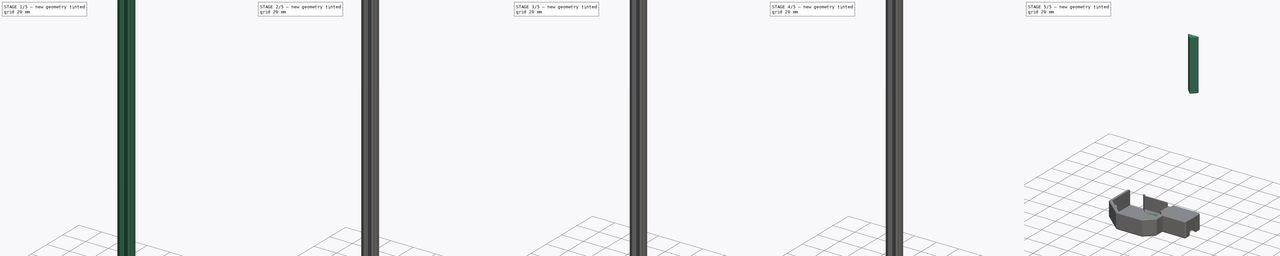
[diagram: build sequence overview — one tinted view per stage of 5, left to right]
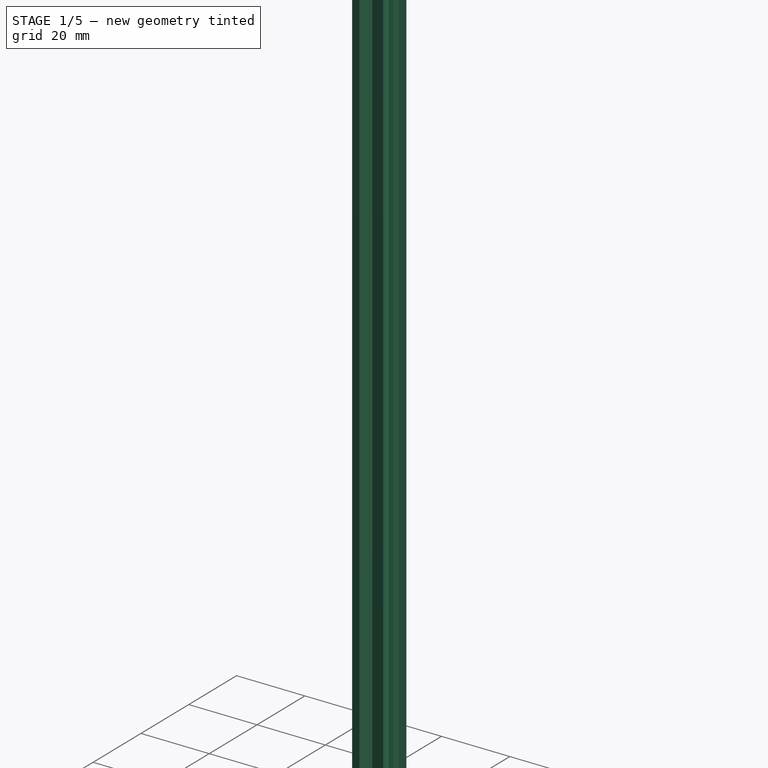
[diagram: stage 1 of 5 — iso view after this stage's code; geometry added in this stage tinted green]
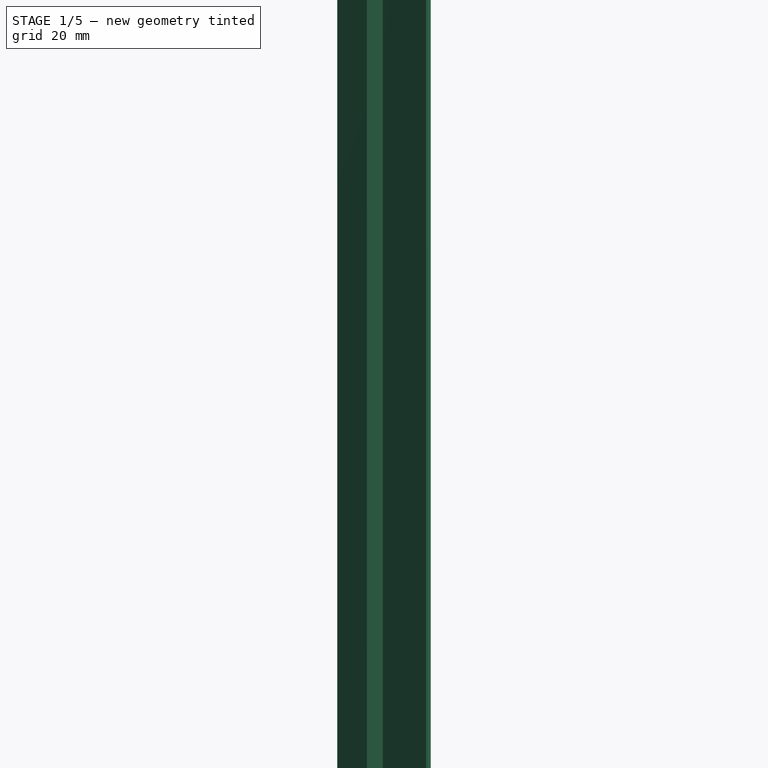
[diagram: stage 1 of 5 — front view after this stage's code; geometry added in this stage tinted green]
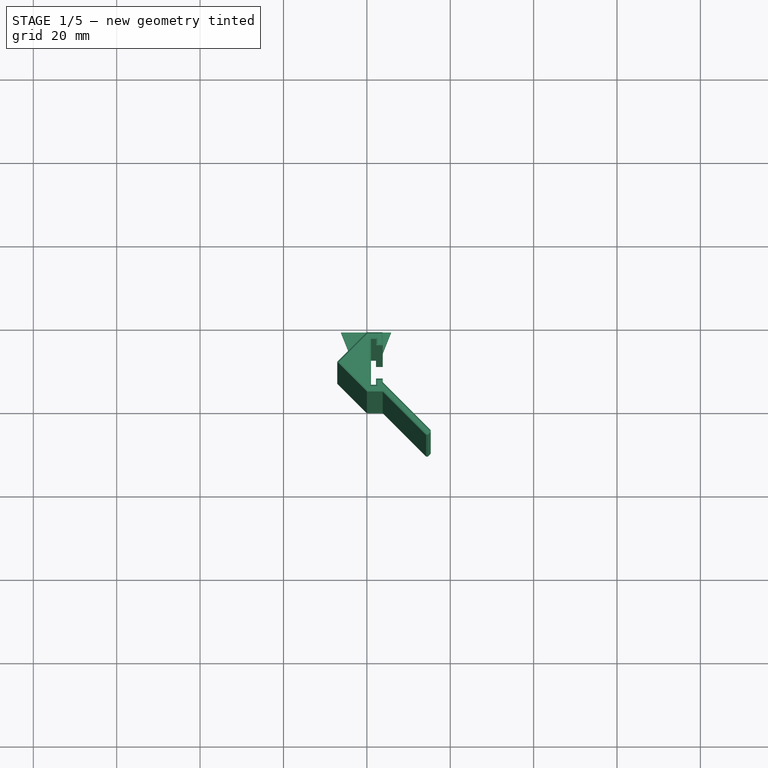
[diagram: stage 1 of 5 — top view after this stage's code; geometry added in this stage tinted green]
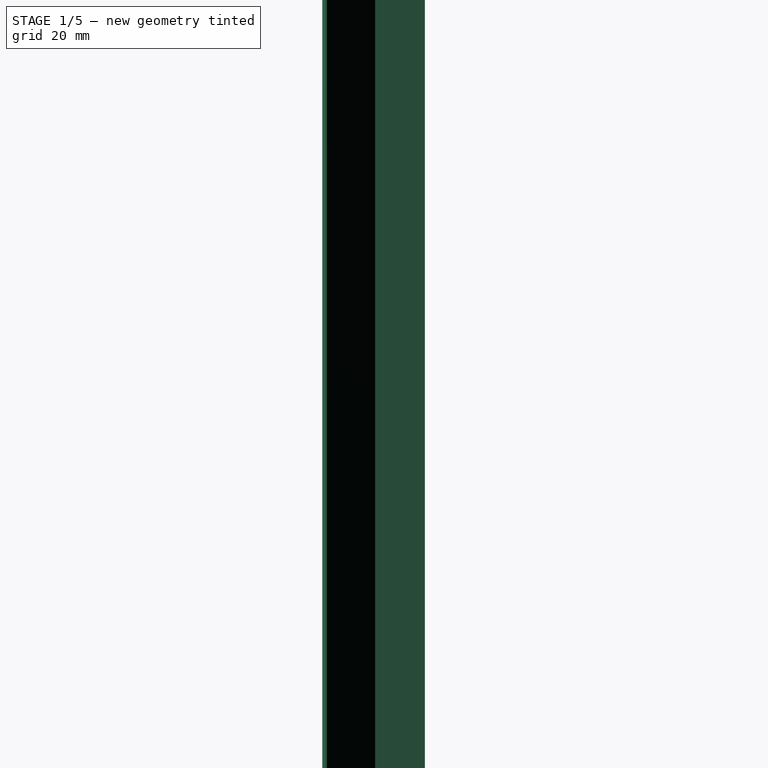
[diagram: stage 1 of 5 — right view after this stage's code; geometry added in this stage tinted green]
FCSTD DOCUMENT  (FreeCAD 2024.101R14555 (Git shallow))
Label: led strip mount
License: All rights reserved
LicenseURL: http://en.wikipedia.org/wiki/All_rights_reserved
objects: Sketcher::SketchObject×16, PartDesign::Pad×12, PartDesign::Chamfer×10, PartDesign::Pocket×6, PartDesign::Body×4, PartDesign::SubShapeBinder×3, PartDesign::Solid×2, PartDesign::Plane×1, Part::Feature×1, Part::Refine×1, PartDesign::Split×1
note: 130 computed .brp shape members not serialized (recipe doc carries the construction recipe); baked Part::Feature solids carry a one-line shape summary decoded from their .brp

FEATURE [Sketcher::SketchObject] Sketch008
  ArcFitTolerance = 1e-06
  AttachmentSupport = -> [XY_Plane002]
  ExternalBSplineMaxDegree = 5
  ExternalBSplineTolerance = 0.0001
  FullyConstrained = true
  InternalTolerance = 1e-06
  InvalidShape = false
  MakeInternals = false
  MapMode = 5
  Support = -> [XY_Plane002]
  TreeRank = 131
  ValidateShape = true
  sketch-geometry (14):
    g0: LineSegment StartX=3.8 StartY=3.1 StartZ=0 EndX=3.8 EndY=0 EndZ=0
    g1: LineSegment StartX=3.8 StartY=0 StartZ=0 EndX=0 EndY=0 EndZ=0
    g2: LineSegment StartX=0 StartY=14.2 StartZ=0 EndX=3.8 EndY=14.2 EndZ=0
    g3: LineSegment StartX=3.8 StartY=14.2 StartZ=0 EndX=3.8 EndY=11.1 EndZ=0
    g4: LineSegment StartX=1 StartY=12.6 StartZ=0 EndX=1 EndY=1.6 EndZ=0
    g5: LineSegment StartX=1 StartY=1.6 StartZ=0 EndX=2.2 EndY=1.6 EndZ=0
    g6: LineSegment StartX=2.2 StartY=1.6 StartZ=0 EndX=2.2 EndY=3.1 EndZ=0
    g7: LineSegment StartX=2.2 StartY=3.1 StartZ=0 EndX=3.8 EndY=3.1 EndZ=0
    g8: LineSegment StartX=1 StartY=12.6 StartZ=0 EndX=2.2 EndY=12.6 EndZ=0
    g9: LineSegment StartX=2.2 StartY=12.6 StartZ=0 EndX=2.2 EndY=11.1 EndZ=0
    g10: LineSegment StartX=2.2 StartY=11.1 StartZ=0 EndX=3.8 EndY=11.1 EndZ=0
    g11: LineSegment StartX=-7.1 StartY=7.1 StartZ=0 EndX=0 EndY=0 EndZ=0
    g12: LineSegment [constr] StartX=2.2 StartY=1.6 StartZ=0 EndX=2.2 EndY=0 EndZ=0
    g13: LineSegment StartX=-7.1 StartY=7.1 StartZ=0 EndX=-9e-16 EndY=14.2 EndZ=0
  constraints (41):
    c: Vertical(g0)
    c: Coincident(g0,g1)
    c: Coincident(g1,g-1)
    c: Horizontal(g1)
    c: PointOnObject(g2,g-2)
    c: Horizontal(g2)
    c: Coincident(g2,g3)
    c: Vertical(g3)
    c: Vertical(g4)
    c: Coincident(g4,g5)
    c: Horizontal(g5)
    c: Coincident(g5,g6)
    c: Vertical(g6)
    c: Coincident(g6,g7)
    c: Coincident(g4,g8)
    c: Horizontal(g8)
    c: Coincident(g8,g9)
    c: Coincident(g9,g10)
    c: Horizontal(g10)
    c: Coincident(g10,g3)
    c: Coincident(g7,g0)
    c: DistanceY(g4,g4) = 11
    c: DistanceX(g8,g8) = 1.2
    c: Vertical(g9)
    c: Vertical(g9,g6)
    c: Horizontal(g7)
    c: DistanceY(g9,g9) = 1.5
    c: DistanceX(g10,g10) = 1.6
    c: Equal(g3,g0)
    c: Equal(g9,g6)
    c: Equal(g7,g10)
    c: DistanceX(g1,g4) = 1
    c: Coincident(g11,g1)
    c: Coincident(g12,g5)
    c: PointOnObject(g12,g1)
    c: Vertical(g12)
    c: Equal(g12,g7)
    c: Coincident(g13,g2)
    c: Perpendicular(g11,g13)
    c: Equal(g13,g11)
    c: Coincident(g11,g13)
FEATURE [PartDesign::Pad] Pad006
  AddSubType = 0
  AlongSketchNormal = false
  AutoTaperInnerAngle = true
  CheckUpToFaceLimits = true
  ClaimChildren = false
  Direction = (0,0,1)
  Fit = 0
  FitJoin = 0
  InnerFit = 0
  InnerFitJoin = 0
  InvalidShape = false
  Length = 300
  Length2 = 100
  Linearize = true
  NewSolid = false
  Profile = -> Sketch008
  Refine = true
  Suppress = false
  TaperInnerAngle = 0
  TaperInnerAngleRev = 0
  TreeRank = 144
  Type = 0
  ValidateShape = true
  _ProfileBasedVersion = 1
FEATURE [Sketcher::SketchObject] Sketch009
  ArcFitTolerance = 1e-06
  AttachmentSupport = -> [Pad005]
  ExternalBSplineMaxDegree = 5
  ExternalBSplineTolerance = 0.0001
  ExternalGeometry = -> [Pad005]
  FullyConstrained = true
  InternalTolerance = 1e-06
  InvalidShape = false
  MakeInternals = false
  MapMode = 5
  Placement = pos=(0,0,0) rot=(1,0,0;3.14159rad)
  Support = -> [Pad005]
  TreeRank = 146
  ValidateShape = true
  sketch-geometry (4):
    g0: LineSegment StartX=40 StartY=4.2 StartZ=0 EndX=34.8 EndY=6.2 EndZ=0
    g1: LineSegment StartX=34.8 StartY=6.2 StartZ=0 EndX=34.8 EndY=-6.2 EndZ=0
    g2: LineSegment StartX=34.8 StartY=-6.2 StartZ=0 EndX=40 EndY=-4.2 EndZ=0
    g3: LineSegment StartX=40 StartY=-4.2 StartZ=0 EndX=40 EndY=4.2 EndZ=0
  constraints (10):
    c: Coincident(g0,g1)
    c: Coincident(g1,g2)
    c: Coincident(g3,g2)
    c: Coincident(g3,g0)
    c: Symmetric(g0,g2,g-1)
    c: DistanceY(g3,g3) = 8.4
    c: DistanceX(g0,g0) = 5.2
    c: DistanceY(g1,g1) = 12.4
    c: Symmetric(g1,g0,g-1)
    c: PointOnObject(g0,g-3)
FEATURE [Sketcher::SketchObject] Sketch010
  ArcFitTolerance = 1e-06
  AttachmentSupport = -> [XY_Plane002]
  ExternalBSplineMaxDegree = 5
  ExternalBSplineTolerance = 0.0001
  ExternalGeometry = -> [Pad006]
  FullyConstrained = true
  InternalTolerance = 1e-06
  InvalidShape = false
  MakeInternals = false
  MapMode = 5
  Placement = pos=(0,0,0) rot=(0,1,0;3.14159rad)
  Support = -> [XY_Plane002]
  TreeRank = 148
  ValidateShape = true
  sketch-geometry (5):
    g0: LineSegment StartX=-3.8 StartY=14.2 StartZ=0 EndX=-5.8 EndY=19.2 EndZ=0
    g1: LineSegment StartX=-5.8 StartY=19.2 StartZ=0 EndX=6.2 EndY=19.2 EndZ=0
    g2: LineSegment StartX=6.2 StartY=19.2 StartZ=0 EndX=4.2 EndY=14.2 EndZ=0
    g3: LineSegment StartX=4.2 StartY=14.2 StartZ=0 EndX=-3.8 EndY=14.2 EndZ=0
    g4: LineSegment [constr] StartX=0.2 StartY=14.2 StartZ=0 EndX=0.2 EndY=19.2 EndZ=0
  constraints (13):
    c: Coincident(g0,g1)
    c: Horizontal(g1)
    c: Coincident(g1,g2)
    c: Horizontal(g3)
    c: DistanceX(g3,g3) = 8
    c: DistanceX(g1,g1) = 12
    c: DistanceY(g0,g0) = 5
    c: Vertical(g4)
    c: Symmetric(g0,g2,g4)
    c: Symmetric(g0,g1,g4)
    c: Coincident(g0,g3)
    c: Coincident(g2,g3)
    c: Coincident(g0,g-3)
FEATURE [PartDesign::Pad] Pad007
  AddSubType = 0
  AlongSketchNormal = false
  AutoTaperInnerAngle = true
  BaseFeature = -> Pad006
  CheckUpToFaceLimits = true
  ClaimChildren = false
  Direction = (0,0,-1)
  Fit = 0
  FitJoin = 0
  InnerFit = 0
  InnerFitJoin = 0
  InvalidShape = false
  Length = 10
  Length2 = 100
  Linearize = true
  NewSolid = false
  Profile = -> Sketch010
  Refine = true
  Reversed = true
  Suppress = false
  TaperInnerAngle = 0
  TaperInnerAngleRev = 0
  TreeRank = 149
  Type = 0
  ValidateShape = true
  _ProfileBasedVersion = 1
FEATURE [Sketcher::SketchObject] Sketch013
  ArcFitTolerance = 1e-06
  AttachmentSupport = -> [XY_Plane002]
  ExternalBSplineMaxDegree = 5
  ExternalBSplineTolerance = 0.0001
  ExternalGeometry = -> [Pad007]
  FullyConstrained = true
  InternalTolerance = 1e-06
  InvalidShape = false
  MakeInternals = false
  MapMode = 5
  Placement = pos=(0,0,0) rot=(0,1,0;3.14159rad)
  Support = -> [XY_Plane002]
  TreeRank = 157
  ValidateShape = true
  sketch-geometry (1):
    g0: LineSegment StartX=4.2 StartY=14.2 StartZ=0 EndX=7.1 EndY=7.1 EndZ=0
  constraints (2):
    c: Coincident(g0,g-3)
    c: Coincident(g0,g-4)
FEATURE [PartDesign::Pad] Pad010
  AddSubType = 0
  AlongSketchNormal = false
  AutoTaperInnerAngle = true
  BaseFeature = -> Pad007
  CheckUpToFaceLimits = true
  ClaimChildren = false
  Direction = (0,0,-1)
  Fit = 0
  FitJoin = 0
  InnerFit = 0
  InnerFitJoin = 0
  InvalidShape = false
  Length = 10
  Length2 = 100
  Linearize = true
  NewSolid = false
  Profile = -> Sketch013
  Refine = true
  Suppress = false
  TaperInnerAngle = 0
  TaperInnerAngleRev = 0
  TreeRank = 158
  Type = 3
  UpToFace = -> Pad007 [Face19]
  ValidateShape = true
  _ProfileBasedVersion = 1
FEATURE [PartDesign::Plane] DatumPlane
  AttachmentOffset = pos=(0,0,150) rot=(0,0,1;0rad)
  AttachmentSupport = -> [XY_Plane002]
  InvalidShape = false
  Length = 10.7
  MapMode = 5
  MinimumLength = 10
  MinimumWidth = 10
  Placement = pos=(0,0,150) rot=(0,0,1;0rad)
  ResizeMode = 0
  Support = -> [XY_Plane002]
  TreeRank = 199
  ValidateShape = true
  Width = 18
FEATURE [Sketcher::SketchObject] Sketch014
  ArcFitTolerance = 1e-06
  AttachmentSupport = -> [DatumPlane]
  ExternalBSplineMaxDegree = 5
  ExternalBSplineTolerance = 0.0001
  ExternalGeometry = -> [Pad010]
  FullyConstrained = true
  InternalTolerance = 1e-06
  InvalidShape = false
  MakeInternals = false
  MapMode = 5
  Placement = pos=(0,0,150) rot=(0,0,1;0rad)
  Support = -> [DatumPlane]
  TreeRank = 163
  ValidateShape = true
  sketch-geometry (5):
    g0: LineSegment StartX=0 StartY=12.7858 StartZ=0 EndX=-5.68579 EndY=7.1 EndZ=0
    g1: LineSegment StartX=-5.68579 StartY=7.1 StartZ=0 EndX=0 EndY=1.41421 EndZ=0
    g2: LineSegment StartX=0 StartY=1.41421 StartZ=0 EndX=0 EndY=12.7858 EndZ=0
    g3: LineSegment [constr] StartX=0 StartY=12.7858 StartZ=0 EndX=1 EndY=12.7858 EndZ=0
    g4: LineSegment [constr] StartX=0 StartY=12.7858 StartZ=0 EndX=-0.707107 EndY=13.4929 EndZ=0
  constraints (15):
    c: Coincident(g0,g1)
    c: Coincident(g1,g2)
    c: Coincident(g2,g0)
    c: Vertical(g2)
    c: Equal(g0,g1)
    c: Perpendicular(g1,g0)
    c: Horizontal(g-5,g0)
    c: PointOnObject(g0,g-2)
    c: Coincident(g3,g0)
    c: PointOnObject(g3,g-4)
    c: Horizontal(g3)
    c: Coincident(g4,g0)
    c: PointOnObject(g4,g-3)
    c: Perpendicular(g-3,g4)
    c: Equal(g4,g3)
FEATURE [PartDesign::Pocket] Pocket001
  AddSubType = 1
  AutoTaperInnerAngle = true
  BaseFeature = -> Pad010
  CheckUpToFaceLimits = true
  ClaimChildren = false
  Direction = (0,0,-1)
  Fit = 0
  FitJoin = 0
  InnerFit = 0
  InnerFitJoin = 0
  InvalidShape = false
  Length = 55
  Length2 = 100
  Linearize = true
  Midplane = true
  NewSolid = false
  Profile = -> Sketch014
  Refine = true
  Suppress = false
  TaperInnerAngle = 0
  TaperInnerAngleRev = 0
  TreeRank = 164
  Type = 0
  ValidateShape = true
  _ProfileBasedVersion = 1
  _Version = 1
FEATURE [Sketcher::SketchObject] Sketch021
  ArcFitTolerance = 1e-06
  AttachmentSupport = -> [XY_Plane002]
  ExternalBSplineMaxDegree = 5
  ExternalBSplineTolerance = 0.0001
  ExternalGeometry = -> [Sketch008]
  FixShape = 1
  FullyConstrained = true
  InternalTolerance = 1e-06
  InvalidShape = false
  MakeInternals = false
  MapMode = 5
  Support = -> [XY_Plane002]
  TreeRank = 235
  ValidateShape = false
  sketch-geometry (4):
    g0: LineSegment StartX=3.8 StartY=0 StartZ=0 EndX=14.4066 EndY=-10.6066 EndZ=0
    g1: LineSegment StartX=3.8 StartY=2.26274 StartZ=0 EndX=15.538 EndY=-9.47523 EndZ=0
    g2: LineSegment StartX=3.8 StartY=2.26274 StartZ=0 EndX=3.8 EndY=0 EndZ=0
    g3: LineSegment StartX=14.4066 StartY=-10.6066 StartZ=0 EndX=15.538 EndY=-9.47523 EndZ=0
  constraints (11):
    c: Coincident(g0,g-4)
    c: PointOnObject(g1,g-4)
    c: Coincident(g2,g1)
    c: Coincident(g2,g0)
    c: Coincident(g3,g0)
    c: Coincident(g3,g1)
    c: Parallel(g0,g1)
    c: Perpendicular(g1,g3)
    c: Angle(g0) = -0.785398
    c: Distance(g0) = 15
    c: Equal(g3,g-5)
FEATURE [PartDesign::Pad] Pad016
  AddSubType = 0
  AlongSketchNormal = false
  AutoTaperInnerAngle = true
  BaseFeature = -> Pocket001
  CheckUpToFaceLimits = true
  ClaimChildren = false
  Direction = (0,0,1)
  Fit = 0
  FitJoin = 0
  FixShape = 1
  InnerFit = 0
  InnerFitJoin = 0
  InvalidShape = false
  Length = 10
  Length2 = 10
  Linearize = true
  NewSolid = false
  Profile = -> Sketch021
  ReferenceAxis = -> Sketch021 [N_Axis]
  Refine = true
  Suppress = false
  TaperInnerAngle = 0
  TaperInnerAngleRev = 0
  TreeRank = 236
  Type = 3
  UpToFace = -> Pocket001 [Face20]
  ValidateShape = false
  _ProfileBasedVersion = 1
FEATURE [PartDesign::Chamfer] Chamfer007
  AddSubType = 0
  Angle = 45
  Base = -> Pad016 [Edge22,Edge27,Edge37,Edge57,Edge59,Edge9,Edge60,Edge61,Edge3,Edge25,Edge40,Edge6,Edge18,Edge49,Edge41,Edge38,Edge52,Edge53,Edge10,Edge7,Edge4,Edge19,Edge50,Edge58,Edge55,Edge47,Edge44,Edge34,Edge54,Edge14,Edge12,Edge56,Edge45,Edge16,Edge13,Edge48]
  BaseFeature = -> Pad016
  ChamferType = 0
  FixShape = 1
  FlipDirection = false
  InvalidShape = false
  NewSolid = false
  Refine = true
  Size = 0.3
  Size2 = 1
  SupportTransform = false
  Suppress = false
  TreeRank = 242
  UseAllEdges = false
  ValidateShape = false
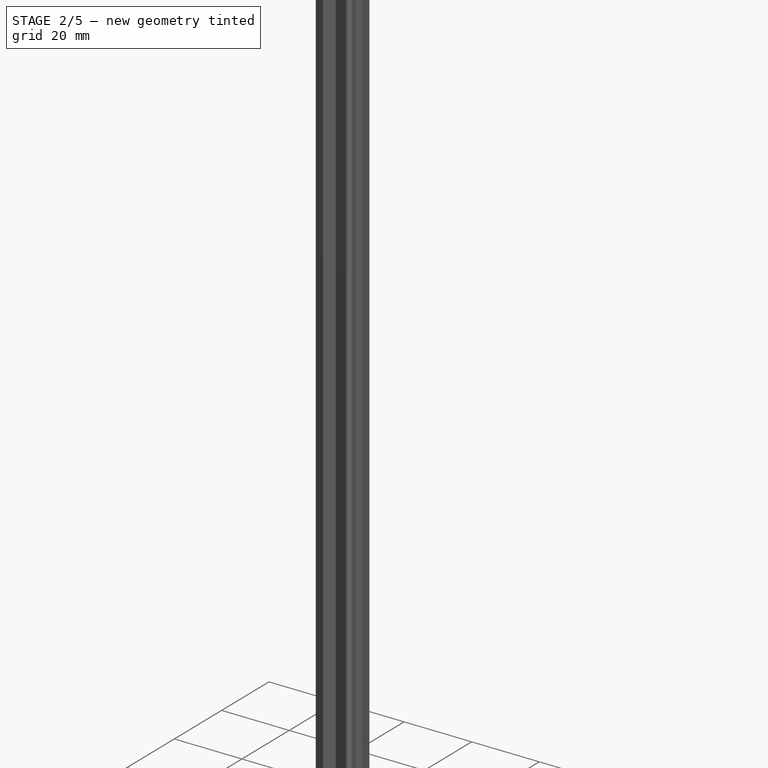
[diagram: stage 2 of 5 — iso view after this stage's code; geometry added in this stage tinted green]
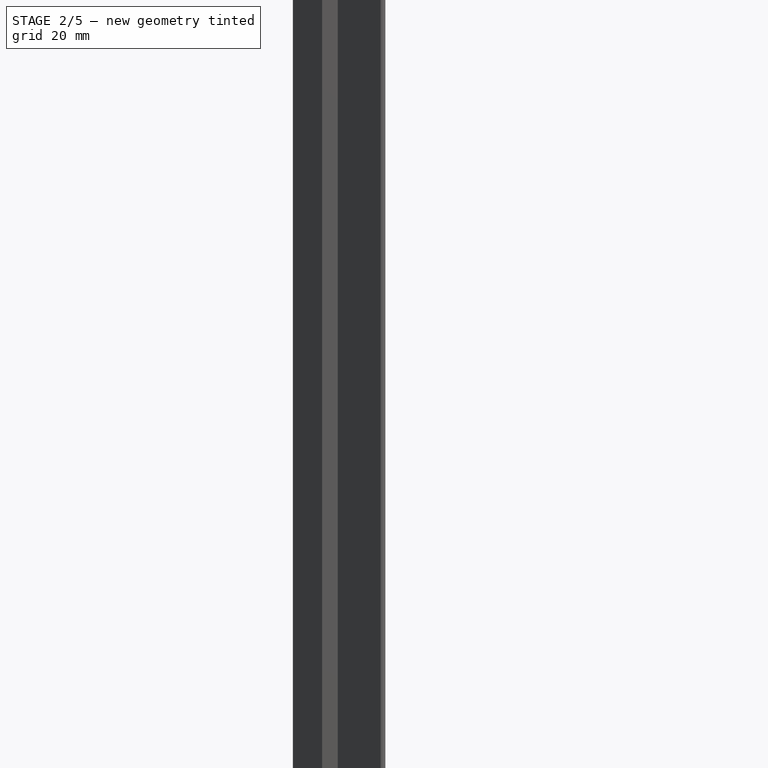
[diagram: stage 2 of 5 — front view after this stage's code; geometry added in this stage tinted green]
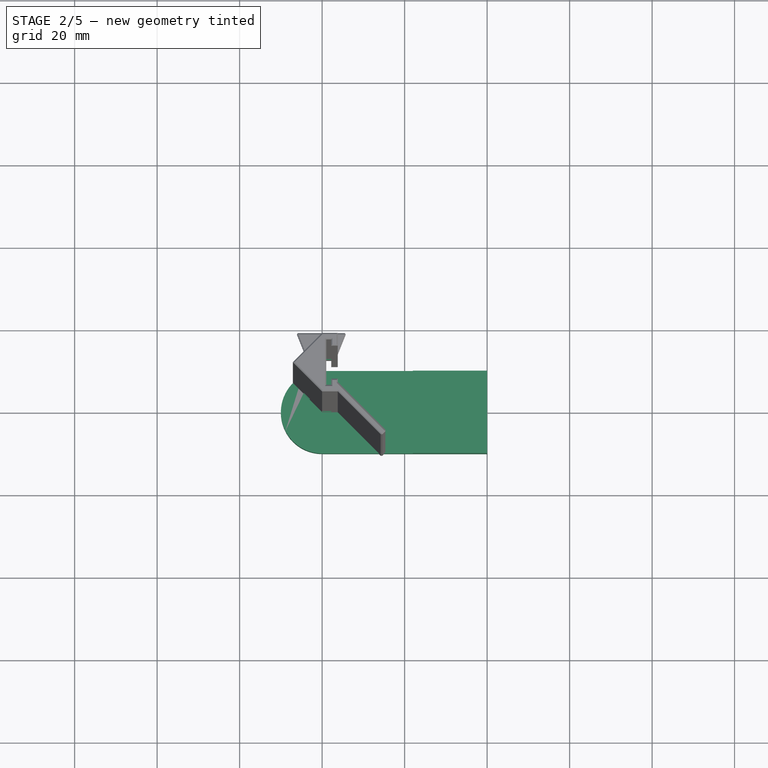
[diagram: stage 2 of 5 — top view after this stage's code; geometry added in this stage tinted green]
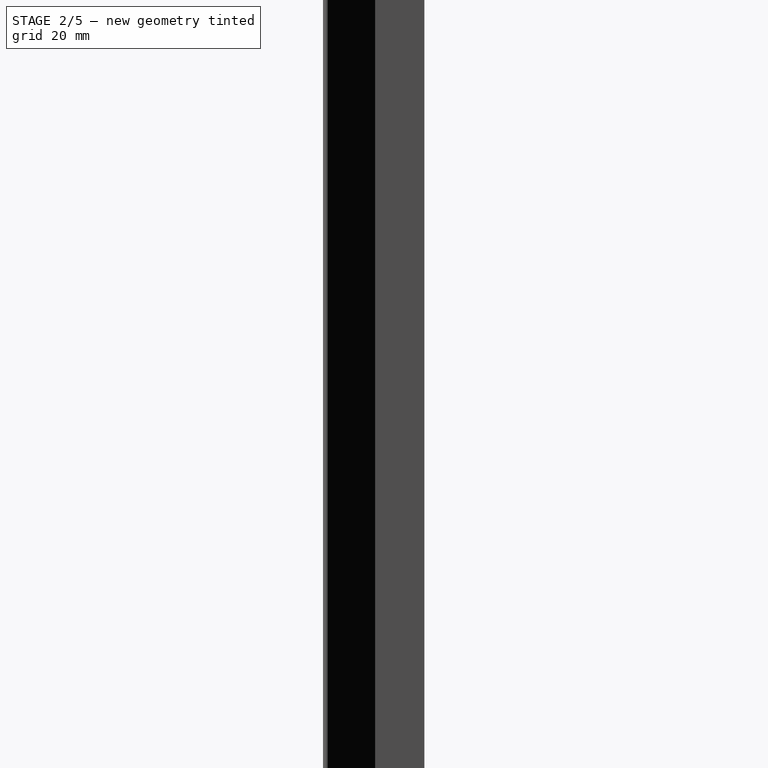
[diagram: stage 2 of 5 — right view after this stage's code; geometry added in this stage tinted green]
FEATURE [Sketcher::SketchObject] Sketch002
  ArcFitTolerance = 1e-06
  AttachmentSupport = -> [XY_Plane001]
  ExternalBSplineMaxDegree = 5
  ExternalBSplineTolerance = 0.0001
  FullyConstrained = true
  InternalTolerance = 1e-06
  InvalidShape = false
  MakeInternals = false
  MapMode = 5
  Support = -> [XY_Plane001]
  TreeRank = 51
  ValidateShape = true
  sketch-geometry (4):
    g0: LineSegment StartX=-1.464e-12 StartY=10 StartZ=0 EndX=40 EndY=10 EndZ=0
    g1: LineSegment StartX=40 StartY=10 StartZ=0 EndX=40 EndY=-10 EndZ=0
    g2: LineSegment StartX=40 StartY=-10 StartZ=0 EndX=1.1653e-12 EndY=-10 EndZ=0
    g3: ArcOfCircle CenterX=0 CenterY=0 CenterZ=0 NormalX=0 NormalY=0 NormalZ=1 AngleXU=0 Radius=10 StartAngle=1.5708 EndAngle=4.71239
  constraints (10):
    c: Coincident(g0,g1)
    c: Coincident(g1,g2)
    c: Horizontal(g0)
    c: Horizontal(g2)
    c: Vertical(g1)
    c: Tangent(g3,g0) = 1.5708
    c: Radius(g3) = 10
    c: Tangent(g2,g3) = 1.5708
    c: DistanceX(g0,g0) = 40
    c: Coincident(g3,g-1)
FEATURE [PartDesign::Pad] Pad002
  AddSubType = 0
  AlongSketchNormal = false
  AutoTaperInnerAngle = true
  CheckUpToFaceLimits = true
  ClaimChildren = false
  Direction = (0,0,1)
  Fit = 0
  FitJoin = 0
  InnerFit = 0
  InnerFitJoin = 0
  InvalidShape = false
  Length = 10
  Length2 = 100
  Linearize = true
  NewSolid = false
  Profile = -> Sketch002
  Refine = true
  Suppress = false
  TaperInnerAngle = 0
  TaperInnerAngleRev = 0
  TreeRank = 52
  Type = 0
  ValidateShape = true
  _ProfileBasedVersion = 1
FEATURE [Sketcher::SketchObject] Sketch007
  ArcFitTolerance = 1e-06
  AttachmentOffset = pos=(0,0,10) rot=(0,0,1;0rad)
  AttachmentSupport = -> [XY_Plane001]
  ExternalBSplineMaxDegree = 5
  ExternalBSplineTolerance = 0.0001
  ExternalGeometry = -> [Pad002]
  FullyConstrained = true
  InternalTolerance = 1e-06
  InvalidShape = false
  MakeInternals = false
  MapMode = 5
  Placement = pos=(0,0,10) rot=(0,0,1;0rad)
  Support = -> [XY_Plane001]
  TreeRank = 127
  ValidateShape = true
  sketch-geometry (4):
    g0: LineSegment StartX=22 StartY=10 StartZ=0 EndX=40 EndY=10 EndZ=0
    g1: LineSegment StartX=40 StartY=10 StartZ=0 EndX=40 EndY=-10 EndZ=0
    g2: LineSegment StartX=40 StartY=-10 StartZ=0 EndX=22 EndY=-10 EndZ=0
    g3: LineSegment StartX=22 StartY=-10 StartZ=0 EndX=22 EndY=10 EndZ=0
  constraints (11):
    c: Coincident(g0,g1)
    c: Coincident(g1,g2)
    c: Coincident(g2,g3)
    c: Coincident(g3,g0)
    c: Horizontal(g0)
    c: Horizontal(g2)
    c: Vertical(g1)
    c: Vertical(g3)
    c: PointOnObject(g0,g-3)
    c: Coincident(g1,g-4)
    c: DistanceX(g-3,g0) = 22
FEATURE [PartDesign::Pad] Pad005
  AddSubType = 0
  AlongSketchNormal = false
  AutoTaperInnerAngle = true
  BaseFeature = -> Pad002
  CheckUpToFaceLimits = true
  ClaimChildren = false
  Direction = (0,0,1)
  Fit = 0
  FitJoin = 0
  InnerFit = 0
  InnerFitJoin = 0
  InvalidShape = false
  Length = 5
  Length2 = 100
  Linearize = true
  NewSolid = false
  Profile = -> Sketch007
  Refine = true
  Suppress = false
  TaperInnerAngle = 0
  TaperInnerAngleRev = 0
  TreeRank = 128
  Type = 0
  ValidateShape = true
  _ProfileBasedVersion = 1
FEATURE [PartDesign::Pocket] Pocket
  AddSubType = 1
  AutoTaperInnerAngle = true
  BaseFeature = -> Pad005
  CheckUpToFaceLimits = true
  ClaimChildren = false
  Direction = (1,1,1)
  Fit = 0
  FitJoin = 0
  InnerFit = 0
  InnerFitJoin = 0
  InvalidShape = false
  Length = 10.5
  Length2 = 100
  Linearize = true
  NewSolid = false
  Profile = -> Sketch009
  Refine = true
  Suppress = false
  TaperInnerAngle = 0
  TaperInnerAngleRev = 0
  TreeRank = 161
  Type = 0
  ValidateShape = true
  _ProfileBasedVersion = 1
  _Version = 1
FEATURE [PartDesign::Chamfer] Chamfer008
  AddSubType = 0
  Angle = 45
  Base = -> Chamfer007 [Edge117,Edge120,Edge123,Edge118,Edge121,Edge124]
  BaseFeature = -> Chamfer007
  ChamferType = 0
  FixShape = 1
  FlipDirection = false
  InvalidShape = false
  NewSolid = false
  Refine = true
  Size = 0.3
  Size2 = 1
  SupportTransform = false
  Suppress = false
  TreeRank = 243
  UseAllEdges = false
  ValidateShape = false
FEATURE [Sketcher::SketchObject] Sketch018
  ArcFitTolerance = 1e-06
  AttachmentSupport = -> [Chamfer008]
  ExternalBSplineMaxDegree = 5
  ExternalBSplineTolerance = 0.0001
  ExternalGeometry = -> [Chamfer008]
  FullyConstrained = true
  InternalTolerance = 1e-06
  InvalidShape = false
  MakeInternals = false
  MapMode = 5
  Placement = pos=(0,0,0) rot=(1,0,0;1.5708rad)
  Support = -> [Chamfer008]
  TreeRank = 197
  ValidateShape = true
  sketch-geometry (12):
    g0: LineSegment StartX=-4.5 StartY=27 StartZ=0 EndX=-3 EndY=27 EndZ=0
    g1: LineSegment StartX=-3 StartY=27 StartZ=0 EndX=-3 EndY=15 EndZ=0
    g2: LineSegment StartX=-3 StartY=15 StartZ=0 EndX=-4.5 EndY=15 EndZ=0
    g3: LineSegment StartX=-4.5 StartY=15 StartZ=0 EndX=-4.5 EndY=27 EndZ=0
    g4: GeomPoint [constr] X=-4.5 Y=27 Z=0
    g5: GeomPoint [constr] X=-3 Y=15 Z=0
    g6: LineSegment [constr] StartX=2.2 StartY=15 StartZ=0 EndX=0 EndY=15 EndZ=0
    g7: LineSegment StartX=0 StartY=15 StartZ=0 EndX=0 EndY=27 EndZ=0
    g8: LineSegment StartX=0 StartY=27 StartZ=0 EndX=2.2 EndY=27 EndZ=0
    g9: LineSegment StartX=2.2 StartY=27 StartZ=0 EndX=2.2 EndY=15 EndZ=0
    g10: LineSegment StartX=0 StartY=15 StartZ=0 EndX=2.2 EndY=12.8 EndZ=0
    g11: LineSegment StartX=2.2 StartY=12.8 StartZ=0 EndX=2.2 EndY=15 EndZ=0
  constraints (33):
    c: Horizontal(g0)
    c: Horizontal(g2)
    c: Vertical(g1)
    c: Vertical(g3)
    c: PointOnObject(g4,g0)
    c: PointOnObject(g4,g3)
    c: PointOnObject(g5,g1)
    c: PointOnObject(g5,g2)
    c: Vertical(g9)
    c: DistanceY(g6) = 15
    c: DistanceY(g7,g7) = 12
    c: Coincident(g7,g8)
    c: Coincident(g7,g6)
    c: Vertical(g7)
    c: Coincident(g6,g9)
    c: Coincident(g8,g9)
    c: Vertical(g6,g-1)
    c: Horizontal(g6)
    c: PointOnObject(g6,g-5)
    c: Horizontal(g8)
    c: Coincident(g2,g1)
    c: Coincident(g2,g3)
    c: Horizontal(g1,g6)
    c: Coincident(g0,g3)
    c: Coincident(g0,g1)
    c: Horizontal(g0,g7)
    c: DistanceX(g2,g2) = 1.5
    c: DistanceX(g1,g-1) = 3
    c: Coincident(g10,g7)
    c: PointOnObject(g10,g-5)
    c: Coincident(g11,g10)
    c: Coincident(g11,g9)
    c: Angle(g10) = -0.785398
FEATURE [PartDesign::Pocket] Pocket002
  AddSubType = 1
  AutoTaperInnerAngle = true
  BaseFeature = -> Chamfer008
  CheckUpToFaceLimits = true
  ClaimChildren = false
  Direction = (0,1,-2e-16)
  Fit = 0
  FitJoin = 0
  InnerFit = 0
  InnerFitJoin = 0
  InvalidShape = false
  Length = 5
  Length2 = 100
  Linearize = true
  NewSolid = false
  Profile = -> Sketch018
  Refine = true
  Suppress = false
  TaperInnerAngle = 0
  TaperInnerAngleRev = 0
  TreeRank = 200
  Type = 1
  ValidateShape = true
  _ProfileBasedVersion = 1
  _Version = 1
FEATURE [PartDesign::Body] Body  label="mount MK4"
  AutoGroupSolids = false
  ClaimAllChildren = false
  ExportMode = 0
  FixShape = 1
  Group = -> [Binder001,Sketch,Pad,Sketch019,Pad014,Binder002,Sketch020,Pad015,Pocket003,Sketch023,Pocket004,Sketch024,Pad018,Chamfer,Chamfer011,Chamfer012,Chamfer013,Chamfer014]
  InvalidShape = false
  Origin = -> Origin
  Placement = pos=(-8,3,1.6) rot=(0,0,1;0rad)
  Tip = -> Chamfer014
  TreeRank = 223
  ValidateShape = false
  _ExportChildren = -> [Binder001,Pad,Pad014,Pad015,Pocket003,Pocket004,Pad018,Chamfer,Chamfer011,Chamfer012,Chamfer013,Chamfer014]
  _GroupVersion = 1
FEATURE [Sketcher::SketchObject] Sketch025
  ArcFitTolerance = 1e-06
  AttachmentSupport = -> [Pocket002]
  ExternalBSplineMaxDegree = 5
  ExternalBSplineTolerance = 0.0001
  ExternalGeometry = -> [Pocket002]
  FixShape = 1
  FullyConstrained = true
  InternalTolerance = 1e-06
  InvalidShape = false
  MakeInternals = false
  MapMode = 5
  Placement = pos=(0,6e-15,27) rot=(1,0,0;3.14159rad)
  Support = -> [Pocket002]
  TreeRank = 263
  ValidateShape = false
  sketch-geometry (4):
    g0: LineSegment StartX=0 StartY=-12.6 StartZ=0 EndX=1 EndY=-12.6 EndZ=0
    g1: LineSegment StartX=1 StartY=-12.6 StartZ=0 EndX=1 EndY=-1.6 EndZ=0
    g2: LineSegment StartX=1 StartY=-1.6 StartZ=0 EndX=0 EndY=-1.6 EndZ=0
    g3: LineSegment StartX=0 StartY=-1.6 StartZ=0 EndX=0 EndY=-12.6 EndZ=0
  constraints (10):
    c: Coincident(g0,g1)
    c: Coincident(g1,g2)
    c: Coincident(g2,g3)
    c: Coincident(g3,g0)
    c: Horizontal(g0)
    c: Horizontal(g2)
    c: Vertical(g3)
    c: PointOnObject(g0,g-2)
    c: Coincident(g1,g-3)
    c: Coincident(g0,g-3)
FEATURE [PartDesign::Pocket] Pocket005
  AddSubType = 1
  AlongSketchNormal = false
  AutoTaperInnerAngle = true
  BaseFeature = -> Pocket002
  CheckUpToFaceLimits = true
  ClaimChildren = false
  Direction = (0,2e-16,1)
  Fit = 0
  FitJoin = 0
  FixShape = 1
  InnerFit = 0
  InnerFitJoin = 0
  InvalidShape = false
  Length = 0.5
  Length2 = 10
  Linearize = true
  NewSolid = false
  Profile = -> Sketch025
  ReferenceAxis = -> Sketch025 [N_Axis]
  Refine = true
  Suppress = false
  TaperInnerAngle = 0
  TaperInnerAngleRev = 0
  TreeRank = 264
  Type = 0
  ValidateShape = false
  _ProfileBasedVersion = 1
  _Version = 1
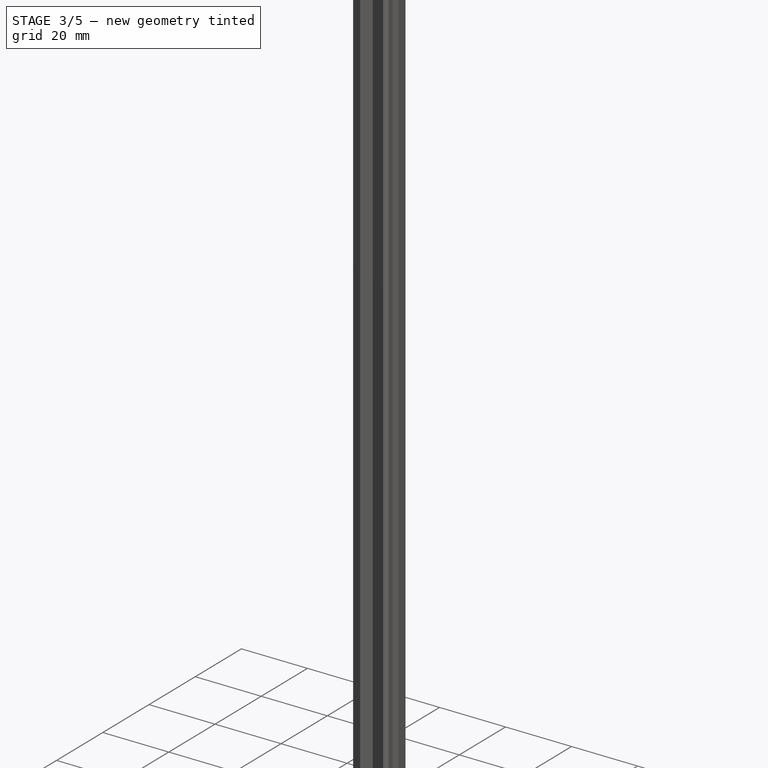
[diagram: stage 3 of 5 — iso view after this stage's code; geometry added in this stage tinted green]
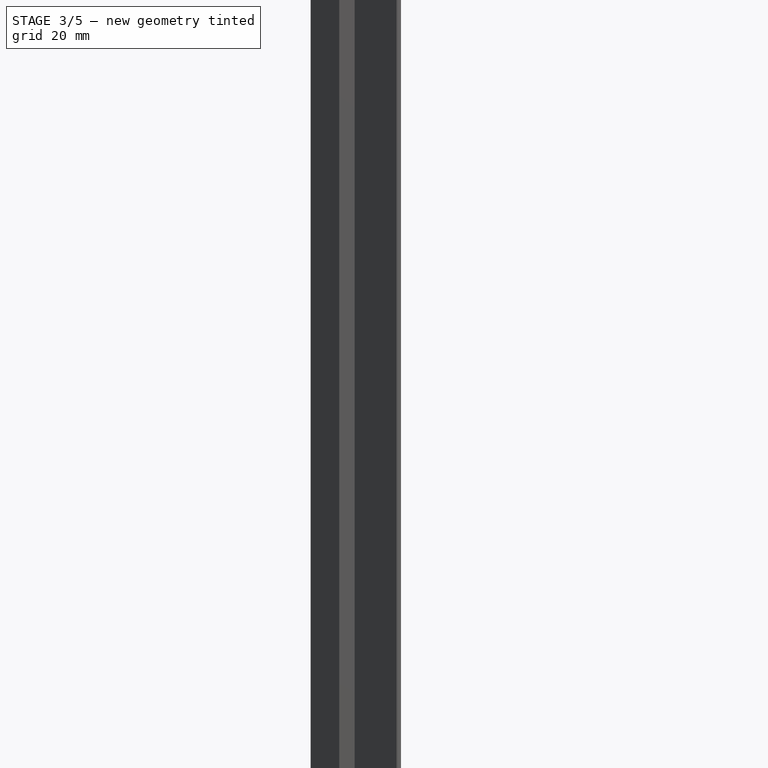
[diagram: stage 3 of 5 — front view after this stage's code; geometry added in this stage tinted green]
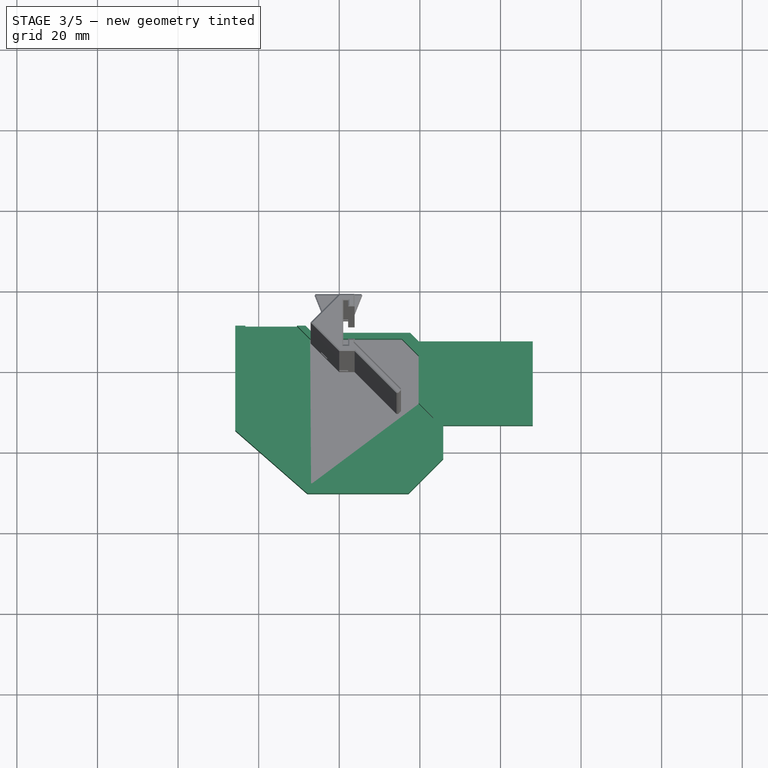
[diagram: stage 3 of 5 — top view after this stage's code; geometry added in this stage tinted green]
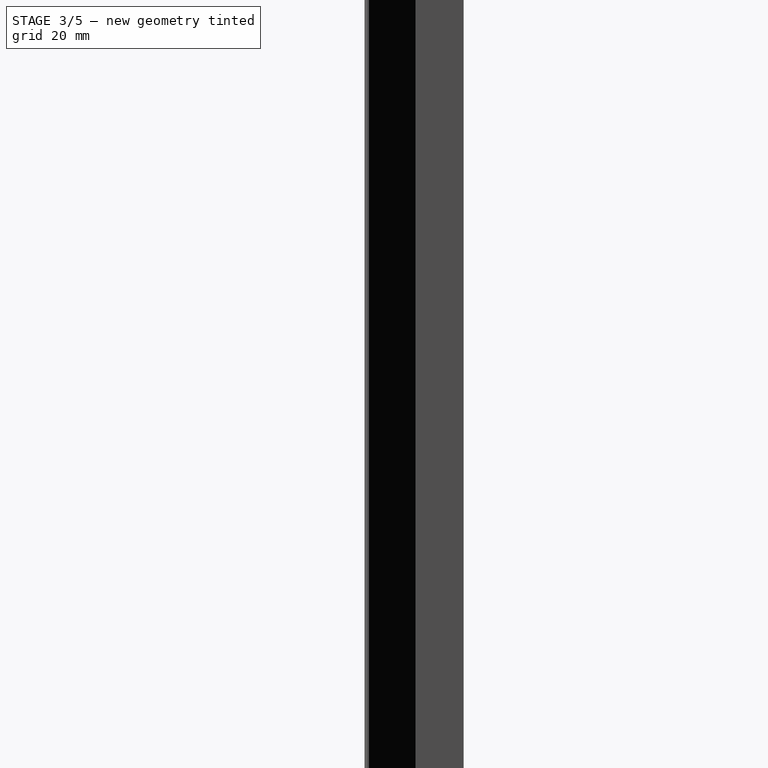
[diagram: stage 3 of 5 — right view after this stage's code; geometry added in this stage tinted green]
FEATURE [PartDesign::Chamfer] Chamfer004
  AddSubType = 0
  Angle = 45
  Base = -> Pocket [Edge23,Edge25]
  BaseFeature = -> Pocket
  ChamferType = 0
  FlipDirection = false
  InvalidShape = false
  NewSolid = false
  Refine = true
  Size = 0.25
  Size2 = 1
  SupportTransform = false
  Suppress = false
  TreeRank = 191
  UseAllEdges = false
  ValidateShape = true
FEATURE [Sketcher::SketchObject] Sketch017
  ArcFitTolerance = 1e-06
  AttachmentSupport = -> [Chamfer004]
  ExternalBSplineMaxDegree = 5
  ExternalBSplineTolerance = 0.0001
  FullyConstrained = true
  InternalTolerance = 1e-06
  InvalidShape = false
  MakeInternals = false
  MapMode = 5
  Placement = pos=(0,0,10) rot=(0,0,1;0rad)
  Support = -> [Chamfer004]
  TreeRank = 192
  ValidateShape = true
  sketch-geometry (8):
    g0: LineSegment StartX=4 StartY=-6.9282 StartZ=0 EndX=8 EndY=-8e-15 EndZ=0
    g1: LineSegment StartX=8 StartY=-8e-15 StartZ=0 EndX=4 EndY=6.9282 EndZ=0
    g2: LineSegment StartX=4 StartY=6.9282 StartZ=0 EndX=-4 EndY=6.9282 EndZ=0
    g3: LineSegment StartX=-4 StartY=6.9282 StartZ=0 EndX=-8 EndY=6.48e-14 EndZ=0
    g4: LineSegment StartX=-8 StartY=6.47e-14 StartZ=0 EndX=-4 EndY=-6.9282 EndZ=0
    g5: LineSegment StartX=-4 StartY=-6.9282 StartZ=0 EndX=4 EndY=-6.9282 EndZ=0
    g6: Circle [constr] CenterX=0 CenterY=0 CenterZ=0 NormalX=0 NormalY=0 NormalZ=1 AngleXU=0 Radius=8
    g7: LineSegment [constr] StartX=0 StartY=0 StartZ=0 EndX=0 EndY=6.9282 EndZ=0
  constraints (19):
    c: Coincident(g0,g1)
    c: Coincident(g1,g2)
    c: Coincident(g2,g3)
    c: Coincident(g3,g4)
    c: Coincident(g4,g5)
    c: Coincident(g5,g0)
    c: Equal(g0, g1-g5) x5
    c: PointOnObject(g0,g6)
    c: PointOnObject(g1,g6)
    c: PointOnObject(g2,g6)
    c: PointOnObject(g3,g6)
    c: PointOnObject(g4,g6)
    c: PointOnObject(g5,g6)
    c: Coincident(g6,g-1)
    c: Coincident(g7,g6)
    c: PointOnObject(g7,g2)
    c: Vertical(g7)
    c: DistanceX(g5,g5) = 8
    c: Horizontal(g5)
FEATURE [PartDesign::Pad] Pad013
  AddSubType = 0
  AlongSketchNormal = false
  AutoTaperInnerAngle = true
  BaseFeature = -> Chamfer004
  CheckUpToFaceLimits = true
  ClaimChildren = false
  Direction = (0,0,1)
  Fit = 0
  FitJoin = 0
  InnerFit = 0
  InnerFitJoin = 0
  InvalidShape = false
  Length = 5
  Length2 = 100
  Linearize = true
  NewSolid = false
  Profile = -> Sketch017
  Refine = true
  Suppress = false
  TaperAngle = -2
  TaperInnerAngle = 2
  TaperInnerAngleRev = 0
  TreeRank = 193
  Type = 0
  ValidateShape = true
  _ProfileBasedVersion = 1
FEATURE [PartDesign::Body] Body001  label="mount MK3"
  AutoGroupSolids = false
  ClaimAllChildren = false
  ExportMode = 0
  Group = -> [Sketch002,Pad002,Sketch007,Pad005,Sketch009,Pocket,Chamfer004,Sketch017,Pad013]
  InvalidShape = false
  Origin = -> Origin001
  Tip = -> Pad013
  TreeRank = 50
  ValidateShape = true
  _ExportChildren = -> [Pad002,Pad005,Pocket,Chamfer004,Pad013]
  _GroupVersion = 1
FEATURE [Part::Feature] z_top_right_r004_solid  label="z_top_right_r004 (Solid)"
  FixShape = 1
  InvalidShape = false
  TreeRank = 209
  ValidateShape = false
  shape: bbox 55 x 46 x 16 mm, 3296 faces (baked)
FEATURE [Part::Refine] Refined  label="z_top_right_r004 (Solid)001"
  FixShape = 1
  InvalidShape = false
  Placement = pos=(-8,3,0.8) rot=(0,0,-1;1.5708rad)
  Source = -> z_top_right_r004_solid
  TreeRank = 210
  ValidateShape = false
FEATURE [PartDesign::SubShapeBinder] Binder001  label="Binder001(z_top_right_r004 (Solid)001)..."
  BindCopyOnChange = 0
  BindMode = 0
  ClaimChildren = false
  Context = -> Body [Binder001.]
  EdgeTolerance = 1e-06
  FillStyle = 0
  FixShape = 1
  Fuse = false
  InvalidShape = false
  MakeFace = true
  MergeEdges = true
  OffsetFill = false
  OffsetIntersection = false
  OffsetJoinType = 0
  OffsetOpenResult = false
  Outline = false
  PartialLoad = false
  Relative = true
  SplitEdges = false
  Support = -> [Refined[Face1056,Face1066,Face1062,Face1061,Face1262,Face1260]]
  TightBound = false
  TreeRank = 211
  ValidateShape = false
  _Version = 8
FEATURE [Sketcher::SketchObject] Sketch
  ArcFitTolerance = 1e-06
  AttachmentSupport = -> [XY_Plane]
  ExternalBSplineMaxDegree = 5
  ExternalBSplineTolerance = 0.0001
  ExternalGeometry = -> [Binder001]
  FixShape = 1
  FullyConstrained = true
  InternalTolerance = 1e-06
  InvalidShape = false
  MakeInternals = false
  MapMode = 5
  Support = -> [XY_Plane]
  TreeRank = 224
  ValidateShape = false
  sketch-geometry (57):
    g0: LineSegment [constr] StartX=-7.00035 StartY=-27.5 StartZ=0 EndX=16.0004 EndY=-27.5 EndZ=0
    g1: LineSegment [constr] StartX=23.0004 StartY=-20.5 StartZ=0 EndX=23.0004 EndY=-11.6007 EndZ=0
    g2: LineSegment [constr] StartX=19.3996 StartY=-8 StartZ=0 EndX=19.3996 EndY=3.75 EndZ=0
    g3: LineSegment [constr] StartX=15.41 StartY=7.73969 StartZ=0 EndX=-7.36066 EndY=7.73969 EndZ=0
    g4: LineSegment [constr] StartX=-10.8004 StartY=11.1794 StartZ=0 EndX=-10.9004 EndY=22.8 EndZ=0
    g5: LineSegment [constr] StartX=-23.0004 StartY=-13.5 StartZ=0 EndX=-23.0004 EndY=27.5 EndZ=0
    g6: LineSegment [constr] StartX=-23.0004 StartY=27.5 StartZ=0 EndX=-15.6004 EndY=27.5 EndZ=0
    g7: LineSegment [constr] StartX=-15.1761 StartY=27.5 StartZ=0 EndX=-10.5014 EndY=22.8253 EndZ=0
    g8: LineSegment [constr] StartX=-10.5014 StartY=22.8253 StartZ=0 EndX=-10.5014 EndY=11.3047 EndZ=0
    g9: LineSegment StartX=-10.5014 StartY=11.3047 StartZ=0 EndX=-7.2364 EndY=8.03969 EndZ=0
    g10: LineSegment StartX=-7.2364 StartY=8.03969 StartZ=0 EndX=15.5342 EndY=8.03969 EndZ=0
    g11: LineSegment StartX=15.5342 StartY=8.03969 StartZ=0 EndX=19.6996 EndY=3.87426 EndZ=0
    g12: LineSegment StartX=19.6996 StartY=3.87426 StartZ=0 EndX=19.6996 EndY=-7.87574 EndZ=0
    g13: LineSegment StartX=19.6996 StartY=-7.87574 StartZ=0 EndX=23.3004 EndY=-11.4764 EndZ=0
    g14: LineSegment StartX=23.3004 StartY=-11.4764 StartZ=0 EndX=23.3004 EndY=-20.6243 EndZ=0
    g15: LineSegment StartX=23.3004 StartY=-20.6243 StartZ=0 EndX=16.1246 EndY=-27.8 EndZ=0
    g16: LineSegment StartX=16.1246 StartY=-27.8 StartZ=0 EndX=-7.00035 EndY=-27.8 EndZ=0
    g17: LineSegment [constr] StartX=-7.00035 StartY=-27.8 StartZ=0 EndX=-7.00035 EndY=-27.5 EndZ=0
    g18: LineSegment [constr] StartX=23.0004 StartY=-20.5 StartZ=0 EndX=23.3004 EndY=-20.5 EndZ=0
    g19: LineSegment [constr] StartX=19.3996 StartY=3.75 StartZ=0 EndX=19.6996 EndY=3.75 EndZ=0
    g20: LineSegment [constr] StartX=15.41 StartY=7.73969 StartZ=0 EndX=15.41 EndY=8.03969 EndZ=0
    g21: LineSegment [constr] StartX=-10.5014 StartY=11.3047 StartZ=0 EndX=-10.8014 EndY=11.3047 EndZ=0
    g22: LineSegment [constr] StartX=-15.3882 StartY=27.2879 StartZ=0 EndX=-15.1761 EndY=27.5 EndZ=0
    g23: LineSegment [constr] StartX=-7.2364 StartY=8.03969 StartZ=0 EndX=-7.44853 EndY=7.82756 EndZ=0
    g24: LineSegment [constr] StartX=15.41 StartY=7.73969 StartZ=0 EndX=15.6221 EndY=7.95183 EndZ=0
    g25: LineSegment [constr] StartX=19.6996 StartY=-7.87574 StartZ=0 EndX=19.4875 EndY=-8.08787 EndZ=0
    g26: LineSegment [constr] StartX=16.0004 StartY=-27.5 StartZ=0 EndX=16.2125 EndY=-27.7121 EndZ=0
    g27: LineSegment [constr] StartX=-11.6406 StartY=27.5 StartZ=0 EndX=-9.00143 EndY=24.8609 EndZ=0
    g28: LineSegment [constr] StartX=-9.00143 StartY=24.8609 StartZ=0 EndX=-9.00143 EndY=11.9261 EndZ=0
    g29: LineSegment [constr] StartX=-9.00143 StartY=11.9261 StartZ=0 EndX=-6.61508 EndY=9.53969 EndZ=0
    g30: LineSegment StartX=-6.61508 StartY=9.53969 StartZ=0 EndX=17.5698 EndY=9.53969 EndZ=0
    g31: LineSegment StartX=17.5698 StartY=9.53969 StartZ=0 EndX=22.1996 EndY=4.9098 EndZ=0
    g32: LineSegment StartX=22.1996 StartY=4.9098 StartZ=0 EndX=22.1996 EndY=-6.8402 EndZ=0
    g33: LineSegment StartX=22.1996 StartY=-6.8402 StartZ=0 EndX=25.8004 EndY=-10.4409 EndZ=0
    g34: LineSegment StartX=25.8004 StartY=-10.4409 StartZ=0 EndX=25.8004 EndY=-21.6598 EndZ=0
    g35: LineSegment StartX=25.8004 StartY=-21.6598 StartZ=0 EndX=17.1602 EndY=-30.3 EndZ=0
    g36: LineSegment StartX=17.1602 StartY=-30.3 StartZ=0 EndX=-7.93969 EndY=-30.3 EndZ=0
    g37: LineSegment [constr] StartX=-9.00143 StartY=11.9261 StartZ=0 EndX=-10.5014 EndY=11.9261 EndZ=0
    g38: LineSegment [constr] StartX=-6.61508 StartY=9.53969 StartZ=0 EndX=-7.67574 EndY=8.47903 EndZ=0
    g39: LineSegment [constr] StartX=19.6996 StartY=3.87426 StartZ=0 EndX=21.4674 EndY=5.64203 EndZ=0
    g40: LineSegment [constr] StartX=22.1996 StartY=-6.8402 StartZ=0 EndX=19.6996 EndY=-6.8402 EndZ=0
    g41: LineSegment [constr] StartX=23.3004 StartY=-11.4764 StartZ=0 EndX=25.0681 EndY=-9.70868 EndZ=0
    g42: LineSegment [constr] StartX=25.8004 StartY=-10.4409 StartZ=0 EndX=23.3004 EndY=-10.4409 EndZ=0
    g43: LineSegment [constr] StartX=23.3004 StartY=-20.6243 StartZ=0 EndX=25.0681 EndY=-22.392 EndZ=0
    g44: LineSegment [constr] StartX=-7.00035 StartY=-27.8 StartZ=0 EndX=-7.00035 EndY=-30.3 EndZ=0
    g45: LineSegment [constr] StartX=-7.00035 StartY=-27.8 StartZ=0 EndX=-8.64662 EndY=-29.6814 EndZ=0
    g46: LineSegment [constr] StartX=-6.61508 StartY=9.53969 StartZ=0 EndX=-6.61508 EndY=8.03969 EndZ=0
    g47: LineSegment StartX=-7.00035 StartY=-27.8 StartZ=0 EndX=-23.3004 EndY=-13.5375 EndZ=0
    g48: LineSegment StartX=-7.93969 StartY=-30.3 StartZ=0 EndX=-25.8004 EndY=-14.6719 EndZ=0
    g49: LineSegment [constr] StartX=-15.1761 StartY=27.5 StartZ=0 EndX=-11.6406 EndY=27.5 EndZ=0
    g50: LineSegment [constr] StartX=-11.6406 StartY=27.5 StartZ=0 EndX=-13.4083 EndY=25.7322 EndZ=0
    g51: LineSegment StartX=-10.5014 StartY=11.3047 StartZ=0 EndX=-8.38011 EndY=11.3047 EndZ=0
    g52: LineSegment StartX=-23.3004 StartY=-13.5375 StartZ=0 EndX=-23.3004 EndY=11.3047 EndZ=0
    g53: LineSegment StartX=-23.3004 StartY=11.3047 StartZ=0 EndX=-25.8004 EndY=11.3047 EndZ=0
    g54: LineSegment StartX=-25.8004 StartY=11.3047 StartZ=0 EndX=-25.8004 EndY=-14.6719 EndZ=0
    g55: LineSegment [constr] StartX=-23.3004 StartY=-13.5375 StartZ=0 EndX=-23.0004 EndY=-13.5375 EndZ=0
    g56: LineSegment StartX=-6.61508 StartY=9.53969 StartZ=0 EndX=-8.38011 EndY=11.3047 EndZ=0
  constraints (163):
    c: Coincident(g0,g-9)
    c: Coincident(g0,g-8)
    c: Coincident(g1,g-8)
    c: Coincident(g1,g-7)
    c: Coincident(g2,g-7)
    c: Coincident(g2,g-6)
    c: Coincident(g3,g-6)
    c: Coincident(g3,g-5)
    c: Coincident(g4,g-5)
    c: Coincident(g4,g-3)
    c: Coincident(g5,g-9)
    c: Vertical(g5)
    c: Coincident(g6,g5)
    c: Horizontal(g6)
    c: Coincident(g7,g8)
    c: Vertical(g8)
    c: Coincident(g8,g9)
    c: Coincident(g9,g10)
    c: Horizontal(g10)
    c: Coincident(g10,g11)
    c: Coincident(g11,g12)
    c: Vertical(g12)
    c: Coincident(g12,g13)
    c: Coincident(g13,g14)
    c: Vertical(g14)
    c: Coincident(g14,g15)
    c: Coincident(g15,g16)
    c: Horizontal(g16)
    c: Parallel(g-4,g7)
    c: Parallel(g-5,g9)
    c: Parallel(g-6,g11)
    c: Parallel(g-7,g13)
    c: Parallel(g-8,g15)
    c: Coincident(g17,g16)
    c: Coincident(g17,g-9)
    c: Vertical(g17)
    c: Coincident(g18,g-8)
    c: PointOnObject(g18,g14)
    c: Horizontal(g18)
    c: Coincident(g19,g-6)
    c: PointOnObject(g19,g12)
    c: Horizontal(g19)
    c: Coincident(g20,g-6)
    c: PointOnObject(g20,g10)
    c: Vertical(g20)
    c: Coincident(g21,g8)
    c: PointOnObject(g21,g4)
    c: Horizontal(g21)
    c: Equal(g21,g20)
    c: Equal(g20,g19)
    c: Equal(g19,g18)
    c: Equal(g18,g17)
    c: DistanceY(g17,g17) = 0.3
    c: Perpendicular(g7,g22)
    c: Coincident(g23,g9)
    c: PointOnObject(g23,g-5)
    c: Perpendicular(g23,g-5)
    c: Equal(g23,g21)
    c: Coincident(g24,g-6)
    c: PointOnObject(g24,g11)
    c: Perpendicular(g11,g24)
    c: Equal(g24,g20)
    c: Coincident(g25,g12)
    c: PointOnObject(g25,g-7)
    c: Perpendicular(g-7,g25)
    c: Equal(g25,g19)
    c: Coincident(g26,g-8)
    c: PointOnObject(g26,g15)
    c: Perpendicular(g15,g26)
    c: Equal(g26,g18)
    c: Coincident(g27,g28)
    c: Vertical(g28)
    c: Coincident(g28,g29)
    c: Coincident(g29,g30)
    c: Horizontal(g30)
    c: Coincident(g30,g31)
    c: Coincident(g31,g32)
    c: Vertical(g32)
    c: Coincident(g32,g33)
    c: Coincident(g33,g34)
    c: Vertical(g34)
    c: Coincident(g34,g35)
    c: Coincident(g35,g36)
    c: Horizontal(g36)
    c: Parallel(g35,g15)
    c: Parallel(g13,g33)
    c: Parallel(g11,g31)
    c: Parallel(g9,g29)
    c: Parallel(g7,g27)
    c: Coincident(g37,g28)
    c: PointOnObject(g37,g8)
    c: Horizontal(g37)
    c: Coincident(g38,g29)
    c: PointOnObject(g38,g9)
    c: Coincident(g39,g11)
    c: PointOnObject(g39,g31)
    c: PointOnObject(g40,g12)
    c: Horizontal(g40)
    c: Coincident(g40,g32)
    c: Coincident(g41,g13)
    c: PointOnObject(g41,g33)
    c: Coincident(g42,g33)
    c: PointOnObject(g42,g14)
    c: Horizontal(g42)
    c: Coincident(g43,g14)
    c: PointOnObject(g43,g35)
    c: Coincident(g44,g16)
    c: PointOnObject(g44,g36)
    c: Vertical(g44)
    c: Coincident(g45,g16)
    c: Perpendicular(g35,g43)
    c: Perpendicular(g33,g41)
    c: Perpendicular(g31,g39)
    c: Perpendicular(g9,g38)
    c: Equal(g37,g38)
    c: Equal(g39,g40)
    c: Equal(g40,g41)
    c: Equal(g41,g42)
    c: Equal(g42,g43)
    c: Equal(g43,g44)
    c: Equal(g44,g45)
    c: DistanceY(g44,g44) = 2.5
    c: Coincident(g46,g29)
    c: PointOnObject(g46,g10)
    c: Vertical(g46)
    c: Coincident(g7,g22)
    c: Coincident(g47,g16)
    c: Coincident(g48,g36)
    c: PointOnObject(g45,g48)
    c: Perpendicular(g48,g45)
    c: Parallel(g48,g47)
    c: Coincident(g49,g7)
    c: Coincident(g49,g27)
    c: Horizontal(g49)
    c: Coincident(g50,g27)
    c: PointOnObject(g50,g7)
    c: Perpendicular(g7,g50)
    c: Equal(g22,g21)
    c: PointOnObject(g22,g-4)
    c: Horizontal(g-4,g7)
    c: Coincident(g6,g-4)
    c: Equal(g46,g38)
    c: DistanceX(g37,g37) = 1.5
    c: Equal(g50,g39)
    c: Coincident(g51,g9)
    c: PointOnObject(g51,g29)
    c: Horizontal(g51)
    c: Parallel(g-9,g47)
    c: Coincident(g52,g47)
    c: Coincident(g53,g52)
    c: Horizontal(g53)
    c: Vertical(g52)
    c: Coincident(g54,g53)
    c: Coincident(g54,g48)
    c: Vertical(g54)
    c: Equal(g53,g40)
    c: Coincident(g55,g47)
    c: PointOnObject(g55,g5)
    c: Horizontal(g55)
    c: Equal(g55,g17)
    c: Horizontal(g9,g52)
    c: Coincident(g56,g30)
    c: Coincident(g56,g51)
FEATURE [PartDesign::Pad] Pad
  AddSubType = 0
  AlongSketchNormal = false
  AutoTaperInnerAngle = true
  CheckUpToFaceLimits = true
  ClaimChildren = false
  Direction = (0,0,1)
  Fit = 0
  FitJoin = 0
  FixShape = 1
  InnerFit = 0
  InnerFitJoin = 0
  InvalidShape = false
  Length = 13.5
  Length2 = 10
  Linearize = true
  NewSolid = false
  Profile = -> Sketch
  ReferenceAxis = -> Sketch [N_Axis]
  Refine = true
  Suppress = false
  TaperInnerAngle = 0
  TaperInnerAngleRev = 0
  TreeRank = 225
  Type = 0
  ValidateShape = false
  _ProfileBasedVersion = 1
FEATURE [Sketcher::SketchObject] Sketch019
  ArcFitTolerance = 1e-06
  AttachmentSupport = -> [XY_Plane]
  ExternalBSplineMaxDegree = 5
  ExternalBSplineTolerance = 0.0001
  ExternalGeometry = -> [Pad,Sketch]
  FixShape = 1
  FullyConstrained = true
  InternalTolerance = 1e-06
  InvalidShape = false
  MakeInternals = false
  MapMode = 5
  Support = -> [XY_Plane]
  TreeRank = 226
  ValidateShape = false
  sketch-geometry (1):
    g0: LineSegment StartX=-8.38011 StartY=11.3047 StartZ=0 EndX=-25.8004 EndY=11.3047 EndZ=0
  constraints (2):
    c: Coincident(g0,g-13)
    c: Coincident(g0,g-3)
FEATURE [PartDesign::Pad] Pad014
  AddSubType = 0
  AlongSketchNormal = false
  AutoTaperInnerAngle = true
  BaseFeature = -> Pad
  CheckUpToFaceLimits = true
  ClaimChildren = false
  Direction = (0,0,1)
  Fit = 0
  FitJoin = 0
  FixShape = 1
  InnerFit = 0
  InnerFitJoin = 0
  InvalidShape = false
  Length = 1.6
  Length2 = 10
  Linearize = true
  NewSolid = false
  Profile = -> Sketch019
  ReferenceAxis = -> Sketch019 [N_Axis]
  Refine = true
  Reversed = true
  Suppress = false
  TaperInnerAngle = 0
  TaperInnerAngleRev = 0
  TreeRank = 227
  Type = 0
  ValidateShape = false
  _ProfileBasedVersion = 1
FEATURE [PartDesign::SubShapeBinder] Binder002  label="Binder002(Sketch009)"
  BindCopyOnChange = 0
  BindMode = 0
  ClaimChildren = false
  Context = -> Body [Binder002.]
  EdgeTolerance = 1e-06
  FillStyle = 0
  FixShape = 1
  Fuse = false
  InvalidShape = false
  MakeFace = true
  MergeEdges = true
  OffsetFill = false
  OffsetIntersection = false
  OffsetJoinType = 0
  OffsetOpenResult = false
  Outline = false
  PartialLoad = false
  Relative = true
  SplitEdges = false
  Support = -> [Body001[Sketch009.]]
  TightBound = false
  TreeRank = 228
  ValidateShape = false
  _Version = 8
FEATURE [Sketcher::SketchObject] Sketch020
  ArcFitTolerance = 1e-06
  AttachmentSupport = -> [Pad014]
  ExternalBSplineMaxDegree = 5
  ExternalBSplineTolerance = 0.0001
  ExternalGeometry = -> [Sketch,Binder002,Pad014]
  FixShape = 1
  FullyConstrained = true
  InternalTolerance = 1e-06
  InvalidShape = false
  MakeInternals = false
  MapMode = 5
  Placement = pos=(0,0,-1.6) rot=(1,0,0;3.14159rad)
  Support = -> [Pad014]
  TreeRank = 229
  ValidateShape = false
  sketch-geometry (6):
    g0: GeomPoint [constr] X=48 Y=3 Z=0
    g1: LineSegment StartX=25.8004 StartY=13.4098 StartZ=0 EndX=48 EndY=13.4098 EndZ=0
    g2: LineSegment StartX=48 StartY=13.4098 StartZ=0 EndX=48 EndY=-7.4098 EndZ=0
    g3: LineSegment StartX=48 StartY=-7.4098 StartZ=0 EndX=19.6996 EndY=-7.4098 EndZ=0
    g4: LineSegment StartX=25.8004 StartY=10.4409 StartZ=0 EndX=25.8004 EndY=13.4098 EndZ=0
    g5: LineSegment StartX=22.1996 StartY=-4.9098 StartZ=0 EndX=19.6996 EndY=-7.4098 EndZ=0
  constraints (14):
    c: Symmetric(g-4,g-4,g0)
    c: Coincident(g1,g2)
    c: Coincident(g2,g3)
    c: Horizontal(g1)
    c: Horizontal(g3)
    c: Vertical(g2)
    c: Symmetric(g2,g1,g0)
    c: Coincident(g4,g1)
    c: PointOnObject(g3,g-5)
    c: Vertical(g4)
    c: Coincident(g4,g-3)
    c: Coincident(g5,g-6)
    c: Coincident(g5,g3)
    c: Vertical(g3,g-7)
FEATURE [PartDesign::Pad] Pad015
  AddSubType = 0
  AlongSketchNormal = false
  AutoTaperInnerAngle = true
  BaseFeature = -> Pad014
  CheckUpToFaceLimits = true
  ClaimChildren = false
  Direction = (0,0,-1)
  Fit = 0
  FitJoin = 0
  FixShape = 1
  InnerFit = 0
  InnerFitJoin = 0
  InvalidShape = false
  Length = 3
  Length2 = 10
  Linearize = true
  NewSolid = false
  Profile = -> Sketch020
  ReferenceAxis = -> Sketch020 [N_Axis]
  Refine = true
  Reversed = true
  Suppress = false
  TaperInnerAngle = 0
  TaperInnerAngleRev = 0
  TreeRank = 230
  Type = 3
  UpToFace = -> Pad014 [Face3]
  ValidateShape = false
  _ProfileBasedVersion = 1
FEATURE [PartDesign::Pocket] Pocket003
  AddSubType = 1
  AlongSketchNormal = false
  AutoTaperInnerAngle = true
  BaseFeature = -> Pad015
  CheckUpToFaceLimits = true
  ClaimChildren = false
  Direction = (0,0,-1)
  Fit = 0
  FitJoin = 0
  FixShape = 1
  InnerFit = 0
  InnerFitJoin = 0
  InvalidShape = false
  Length = 10.5
  Length2 = 10
  Linearize = true
  NewSolid = false
  Profile = -> Binder002
  Refine = true
  Reversed = true
  Suppress = false
  TaperInnerAngle = 0
  TaperInnerAngleRev = 0
  TreeRank = 231
  Type = 0
  ValidateShape = false
  _ProfileBasedVersion = 1
  _Version = 1
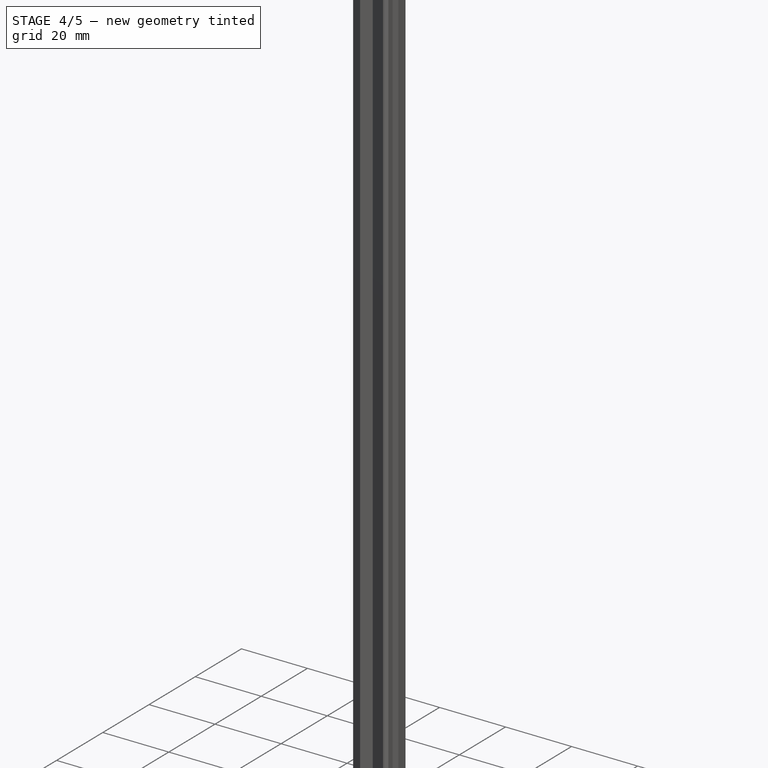
[diagram: stage 4 of 5 — iso view after this stage's code; geometry added in this stage tinted green]
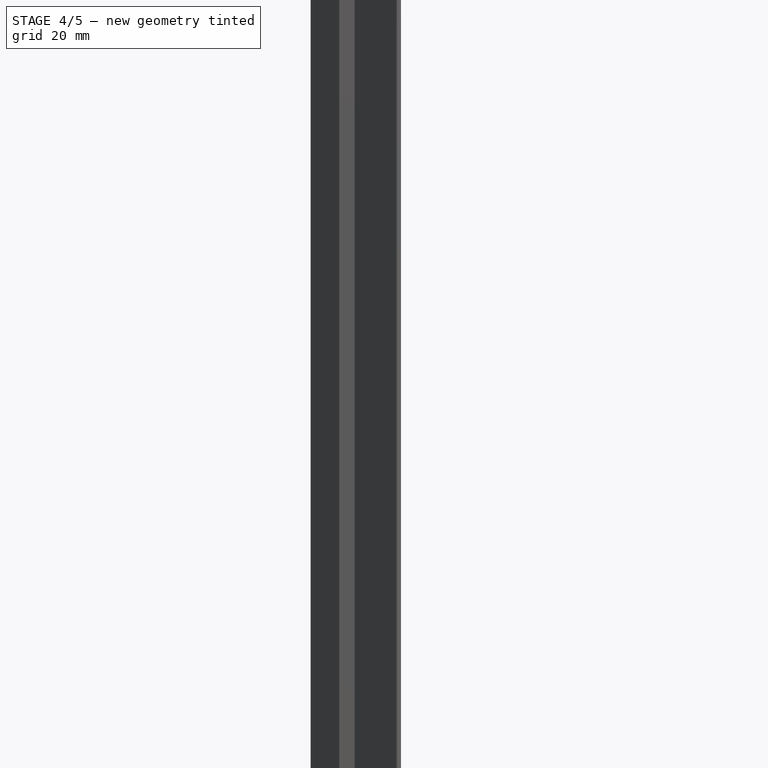
[diagram: stage 4 of 5 — front view after this stage's code; geometry added in this stage tinted green]
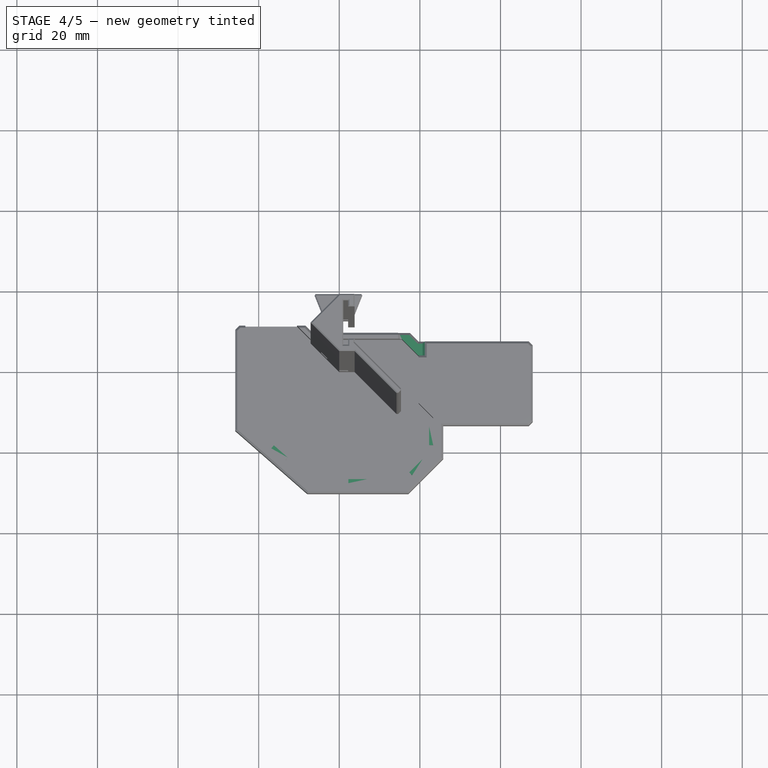
[diagram: stage 4 of 5 — top view after this stage's code; geometry added in this stage tinted green]
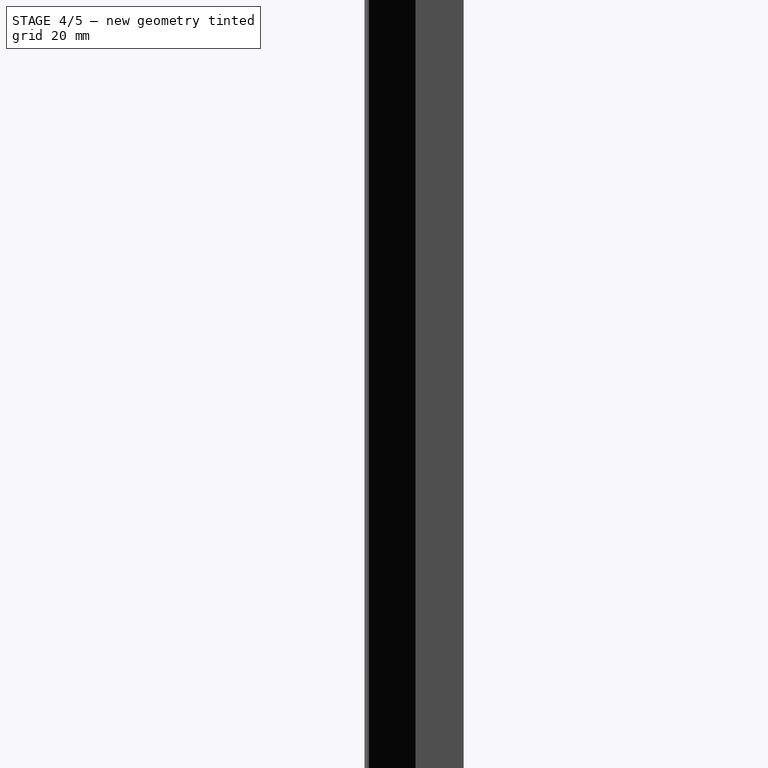
[diagram: stage 4 of 5 — right view after this stage's code; geometry added in this stage tinted green]
FEATURE [PartDesign::Body] Body003  label="connector"
  AutoGroupSolids = false
  ClaimAllChildren = false
  ExportMode = 0
  Group = -> [Binder003,Pad017,Chamfer009,Chamfer010]
  InvalidShape = false
  Origin = -> Origin003
  Tip = -> Chamfer010
  TreeRank = 185
  ValidateShape = true
  _ExportChildren = -> [Pad017,Chamfer009,Chamfer010]
  _GroupVersion = 1
FEATURE [Sketcher::SketchObject] Sketch023
  ArcFitTolerance = 1e-06
  AttachmentSupport = -> [Pocket003]
  ExternalBSplineMaxDegree = 5
  ExternalBSplineTolerance = 0.0001
  ExternalGeometry = -> [Pocket003]
  FixShape = 1
  FullyConstrained = true
  InternalTolerance = 1e-06
  InvalidShape = false
  MakeInternals = false
  MapMode = 5
  Placement = pos=(0,9.53969,0) rot=(0,0.707107,0.707107;3.14159rad)
  Support = -> [Pocket003]
  TreeRank = 249
  ValidateShape = false
  sketch-geometry (4):
    g0: LineSegment StartX=-15.0698 StartY=13.5 StartZ=0 EndX=-15.0698 EndY=9.5 EndZ=0
    g1: LineSegment StartX=-21.1996 StartY=13.5 StartZ=0 EndX=-15.0698 EndY=13.5 EndZ=0
    g2: LineSegment StartX=-21.1996 StartY=13.5 StartZ=0 EndX=-21.1996 EndY=9.5 EndZ=0
    g3: LineSegment StartX=-21.1996 StartY=9.5 StartZ=0 EndX=-15.0698 EndY=9.5 EndZ=0
  constraints (12):
    c: PointOnObject(g0,g-4)
    c: Vertical(g0)
    c: Coincident(g1,g0)
    c: Horizontal(g1)
    c: Coincident(g2,g1)
    c: Vertical(g2)
    c: Coincident(g3,g2)
    c: Coincident(g3,g0)
    c: Horizontal(g3)
    c: DistanceX(g1,g-5) = 1.5
    c: DistanceX(g-4,g0) = 2.5
    c: DistanceY(g2,g2) = 4
FEATURE [PartDesign::Pocket] Pocket004
  AddSubType = 1
  AlongSketchNormal = false
  AutoTaperInnerAngle = true
  BaseFeature = -> Pocket003
  CheckUpToFaceLimits = true
  ClaimChildren = false
  Direction = (0,-1,2e-16)
  Fit = 0
  FitJoin = 0
  FixShape = 1
  InnerFit = 0
  InnerFitJoin = 0
  InvalidShape = false
  Length = 5.6
  Length2 = 10
  Linearize = true
  NewSolid = false
  Profile = -> Sketch023
  ReferenceAxis = -> Sketch023 [N_Axis]
  Refine = true
  Suppress = false
  TaperInnerAngle = 0
  TaperInnerAngleRev = 0
  TreeRank = 250
  Type = 0
  ValidateShape = false
  _ProfileBasedVersion = 1
  _Version = 1
FEATURE [Sketcher::SketchObject] Sketch024
  ArcFitTolerance = 1e-06
  AttachmentSupport = -> [Pocket004]
  ExternalBSplineMaxDegree = 5
  ExternalBSplineTolerance = 0.0001
  ExternalGeometry = -> [Pocket004]
  FixShape = 1
  FullyConstrained = true
  InternalTolerance = 1e-06
  InvalidShape = false
  MakeInternals = false
  MapMode = 5
  Placement = pos=(0,0,13.5) rot=(0,0,1;0rad)
  Support = -> [Pocket004]
  TreeRank = 251
  ValidateShape = false
  sketch-geometry (24):
    g0: LineSegment StartX=2.2534 StartY=-27.8 StartZ=0 EndX=6.87086 EndY=-27.8 EndZ=0
    g1: LineSegment StartX=6.87086 StartY=-27.8 StartZ=0 EndX=6.87086 EndY=-26.8 EndZ=0
    g2: LineSegment StartX=6.87086 StartY=-26.8 StartZ=0 EndX=2.2534 EndY=-26.8 EndZ=0
    g3: LineSegment StartX=2.2534 StartY=-26.8 StartZ=0 EndX=2.2534 EndY=-27.8 EndZ=0
    g4: LineSegment StartX=18.08 StartY=-25.8447 StartZ=0 EndX=21.345 EndY=-22.5796 EndZ=0
    g5: LineSegment StartX=21.345 StartY=-22.5796 StartZ=0 EndX=20.6379 EndY=-21.8725 EndZ=0
    g6: LineSegment StartX=20.6379 StartY=-21.8725 StartZ=0 EndX=17.3729 EndY=-25.1375 EndZ=0
    g7: LineSegment StartX=17.3729 StartY=-25.1375 StartZ=0 EndX=18.08 EndY=-25.8447 EndZ=0
    g8: LineSegment StartX=-16.8879 StartY=-19.1484 StartZ=0 EndX=-16.2293 EndY=-18.3959 EndZ=0
    g9: LineSegment StartX=-16.2293 StartY=-18.3959 StartZ=0 EndX=-12.7544 EndY=-21.4365 EndZ=0
    g10: LineSegment StartX=-12.7544 StartY=-21.4365 StartZ=0 EndX=-13.4129 EndY=-22.1891 EndZ=0
    g11: LineSegment StartX=-13.4129 StartY=-22.1891 StartZ=0 EndX=-16.8879 EndY=-19.1484 EndZ=0
    g12: LineSegment [constr] StartX=23.3004 StartY=-20.6243 StartZ=0 EndX=21.345 EndY=-22.5796 EndZ=0
    g13: LineSegment [constr] StartX=18.08 StartY=-25.8447 StartZ=0 EndX=16.1246 EndY=-27.8 EndZ=0
    g14: LineSegment [constr] StartX=16.1246 StartY=-27.8 StartZ=0 EndX=6.87086 EndY=-27.8 EndZ=0
    g15: LineSegment [constr] StartX=2.2534 StartY=-27.8 StartZ=0 EndX=-7.00035 EndY=-27.8 EndZ=0
    g16: LineSegment [constr] StartX=-7.00035 StartY=-27.8 StartZ=0 EndX=-13.4129 EndY=-22.1891 EndZ=0
    g17: LineSegment [constr] StartX=-16.8879 StartY=-19.1484 StartZ=0 EndX=-23.3004 EndY=-13.5375 EndZ=0
    g18: LineSegment StartX=23.3004 StartY=-13.7416 StartZ=0 EndX=22.3004 EndY=-13.7416 EndZ=0
    g19: LineSegment StartX=22.3004 StartY=-13.7416 StartZ=0 EndX=22.3004 EndY=-18.3591 EndZ=0
    g20: LineSegment StartX=22.3004 StartY=-18.3591 StartZ=0 EndX=23.3004 EndY=-18.3591 EndZ=0
    g21: LineSegment StartX=23.3004 StartY=-18.3591 StartZ=0 EndX=23.3004 EndY=-13.7416 EndZ=0
    g22: LineSegment [constr] StartX=23.3004 StartY=-11.4764 StartZ=0 EndX=23.3004 EndY=-13.7416 EndZ=0
    g23: LineSegment [constr] StartX=23.3004 StartY=-18.3591 StartZ=0 EndX=23.3004 EndY=-20.6243 EndZ=0
  constraints (64):
    c: Coincident(g0,g1)
    c: Coincident(g1,g2)
    c: Coincident(g2,g3)
    c: Coincident(g3,g0)
    c: Horizontal(g0)
    c: Horizontal(g2)
    c: Vertical(g1)
    c: Vertical(g3)
    c: PointOnObject(g0,g-6)
    c: PointOnObject(g4,g-3)
    c: PointOnObject(g4,g-3)
    c: Coincident(g4,g5)
    c: Coincident(g5,g6)
    c: Coincident(g6,g7)
    c: Coincident(g7,g4)
    c: Perpendicular(g7,g-3)
    c: Perpendicular(g6,g7)
    c: Perpendicular(g5,g6)
    c: PointOnObject(g8,g-5)
    c: Coincident(g8,g9)
    c: Coincident(g9,g10)
    c: PointOnObject(g10,g-5)
    c: Coincident(g10,g11)
    c: Coincident(g11,g8)
    c: Perpendicular(g8,g11)
    c: Perpendicular(g9,g8)
    c: Perpendicular(g10,g9)
    c: Equal(g10,g1)
    c: Equal(g1,g7)
    c: Equal(g9,g2)
    c: Equal(g2,g6)
    c: DistanceY(g1,g1) = 1
    c: Coincident(g12,g-3)
    c: Coincident(g12,g4)
    c: Coincident(g13,g4)
    c: Coincident(g13,g-6)
    c: Coincident(g14,g-6)
    c: Coincident(g14,g0)
    c: Coincident(g15,g0)
    c: Coincident(g15,g-6)
    c: Coincident(g16,g-6)
    c: Coincident(g16,g10)
    c: Coincident(g17,g8)
    c: Coincident(g17,g-5)
    c: Equal(g17,g16)
    c: Equal(g14,g15)
    c: Equal(g13,g12)
    c: Coincident(g18,g19)
    c: Coincident(g19,g20)
    c: Coincident(g20,g21)
    c: Coincident(g21,g18)
    c: Horizontal(g18)
    c: Horizontal(g20)
    c: Vertical(g19)
    c: Vertical(g21)
    c: PointOnObject(g18,g-7)
    c: Equal(g6,g19)
    c: Equal(g5,g20)
    c: Coincident(g22,g-7)
    c: Coincident(g22,g18)
    c: Coincident(g23,g20)
    c: Coincident(g23,g-7)
    c: Equal(g22,g23)
    c: Equal(g-4,g9)
FEATURE [PartDesign::Pad] Pad018
  AddSubType = 0
  AlongSketchNormal = false
  AutoTaperInnerAngle = true
  BaseFeature = -> Pocket004
  CheckUpToFaceLimits = true
  ClaimChildren = false
  Direction = (0,0,1)
  Fit = 0
  FitJoin = 0
  FixShape = 1
  InnerFit = 0
  InnerFitJoin = 0
  InvalidShape = false
  Length = 1.2
  Length2 = 10
  Linearize = true
  NewSolid = false
  Profile = -> Sketch024
  ReferenceAxis = -> Sketch024 [N_Axis]
  Refine = true
  Reversed = true
  Suppress = false
  TaperInnerAngle = 0
  TaperInnerAngleRev = 0
  TreeRank = 252
  Type = 0
  ValidateShape = false
  _ProfileBasedVersion = 1
FEATURE [PartDesign::Chamfer] Chamfer
  AddSubType = 0
  Angle = 45
  Base = -> Pad018 [Edge133,Edge125,Edge116,Edge141]
  BaseFeature = -> Pad018
  ChamferType = 0
  FixShape = 1
  FlipDirection = false
  InvalidShape = false
  NewSolid = false
  Refine = true
  Size = 0.9
  Size2 = 1
  SupportTransform = false
  Suppress = false
  TreeRank = 256
  UseAllEdges = false
  ValidateShape = false
FEATURE [PartDesign::Chamfer] Chamfer011
  AddSubType = 0
  Angle = 45
  Base = -> Chamfer [Edge50,Edge132,Edge133,Edge134,Edge107,Edge110,Edge112,Edge114,Edge116,Edge119,Edge120,Edge122,Edge126,Edge54,Edge121,Edge108]
  BaseFeature = -> Chamfer
  ChamferType = 0
  FixShape = 1
  FlipDirection = false
  InvalidShape = false
  NewSolid = false
  Refine = true
  Size = 1
  Size2 = 1
  SupportTransform = false
  Suppress = false
  TreeRank = 259
  UseAllEdges = false
  ValidateShape = false
FEATURE [PartDesign::Chamfer] Chamfer012
  AddSubType = 0
  Angle = 45
  Base = -> Chamfer011 [Edge52,Edge153,Edge154,Edge192,Edge147,Edge145,Edge48]
  BaseFeature = -> Chamfer011
  ChamferType = 0
  FixShape = 1
  FlipDirection = false
  InvalidShape = false
  NewSolid = false
  Refine = true
  Size = 0.3
  Size2 = 1
  SupportTransform = false
  Suppress = false
  TreeRank = 260
  UseAllEdges = false
  ValidateShape = false
FEATURE [PartDesign::Chamfer] Chamfer013
  AddSubType = 0
  Angle = 45
  Base = -> Chamfer012 [Edge137,Edge209,Edge210,Edge25,Edge26,Edge5,Edge22,Edge30,Edge32,Edge34,Edge36,Edge38,Edge40,Edge42,Edge44,Edge216,Edge211,Edge27,Edge28,Edge199,Edge197,Edge97,Edge99]
  BaseFeature = -> Chamfer012
  ChamferType = 0
  FixShape = 1
  FlipDirection = false
  InvalidShape = false
  NewSolid = false
  Refine = true
  Size = 0.5
  Size2 = 1
  SupportTransform = false
  Suppress = false
  TreeRank = 261
  UseAllEdges = false
  ValidateShape = false
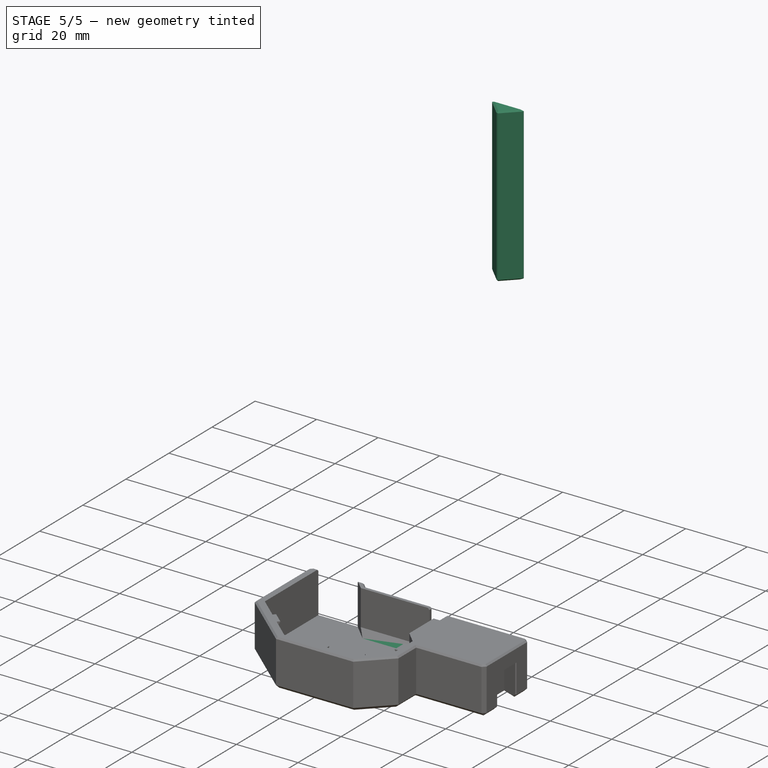
[diagram: stage 5 of 5 — iso view after this stage's code; geometry added in this stage tinted green]
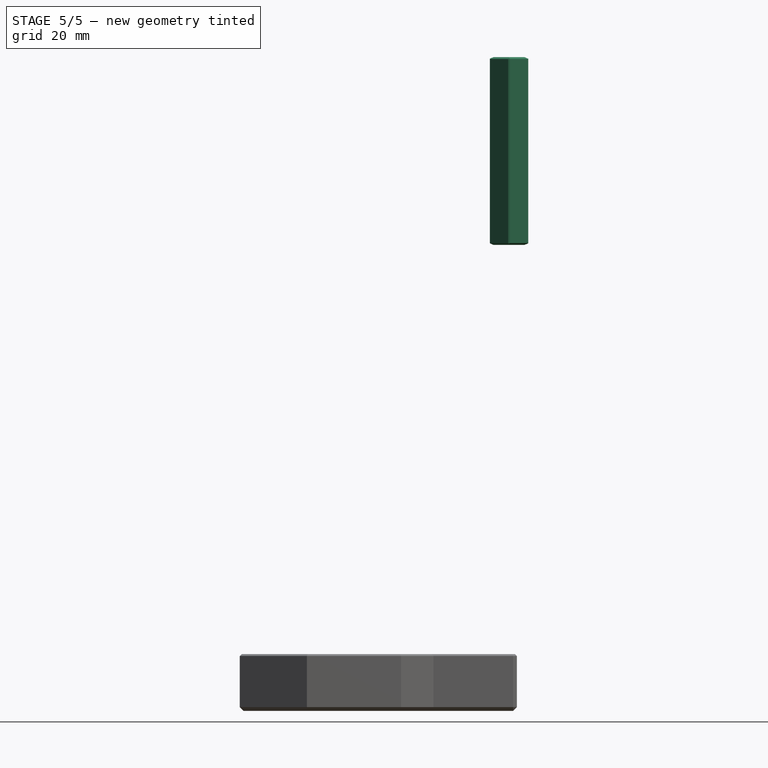
[diagram: stage 5 of 5 — front view after this stage's code; geometry added in this stage tinted green]
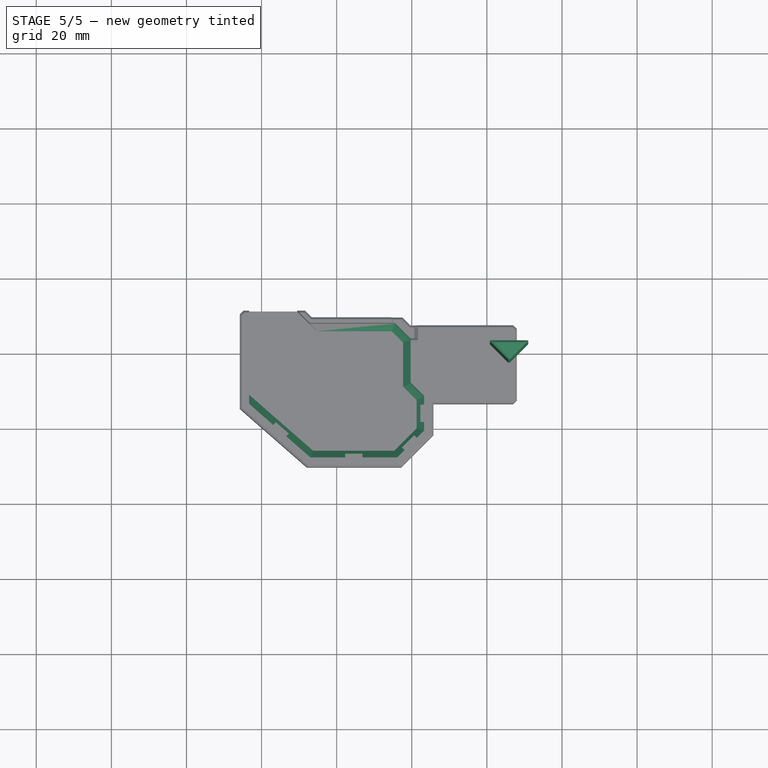
[diagram: stage 5 of 5 — top view after this stage's code; geometry added in this stage tinted green]
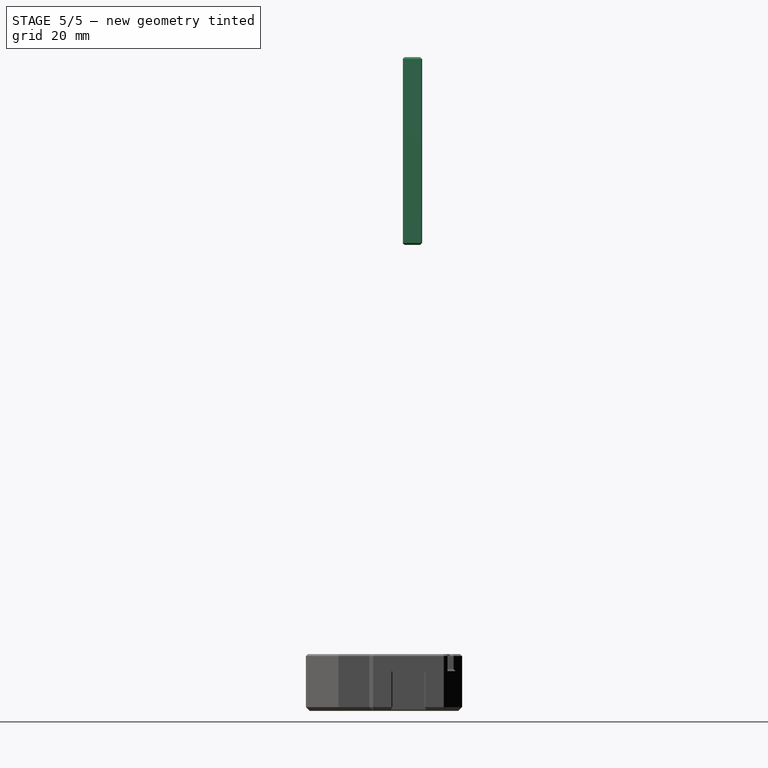
[diagram: stage 5 of 5 — right view after this stage's code; geometry added in this stage tinted green]
FEATURE [PartDesign::SubShapeBinder] Binder003  label="Binder003(Split)"
  BindCopyOnChange = 0
  BindMode = 0
  ClaimChildren = false
  Context = -> Body003 [Binder003.]
  EdgeTolerance = 1e-06
  FillStyle = 0
  FixShape = 1
  Fuse = false
  InvalidShape = false
  MakeFace = true
  MergeEdges = true
  Offset = -0.15
  OffsetFill = false
  OffsetIntersection = false
  OffsetJoinType = 0
  OffsetOpenResult = false
  Outline = false
  PartialLoad = false
  Relative = true
  SplitEdges = false
  Support = -> [Body002[Split.Face69]]
  TightBound = false
  TreeRank = 244
  ValidateShape = false
  _Version = 8
FEATURE [PartDesign::Pad] Pad017
  AddSubType = 0
  AlongSketchNormal = false
  AutoTaperInnerAngle = true
  CheckUpToFaceLimits = true
  ClaimChildren = false
  Direction = (0,0,1)
  Fit = 0
  FitJoin = 0
  FixShape = 1
  InnerFit = 0
  InnerFitJoin = 0
  InvalidShape = false
  Length = 50
  Length2 = 10
  Linearize = true
  NewSolid = false
  Profile = -> Binder003
  Refine = true
  Suppress = false
  TaperInnerAngle = 0
  TaperInnerAngleRev = 0
  TreeRank = 245
  Type = 0
  ValidateShape = false
  _ProfileBasedVersion = 1
FEATURE [PartDesign::Chamfer] Chamfer009
  AddSubType = 0
  Angle = 45
  Base = -> Pad017 [Face4,Face5]
  BaseFeature = -> Pad017
  ChamferType = 0
  FixShape = 1
  FlipDirection = false
  InvalidShape = false
  NewSolid = false
  Refine = true
  Size = 0.5
  Size2 = 1
  SupportTransform = false
  Suppress = false
  TreeRank = 246
  UseAllEdges = false
  ValidateShape = false
FEATURE [PartDesign::Chamfer] Chamfer010
  AddSubType = 0
  Angle = 45
  Base = -> Chamfer009 [Edge5,Edge1,Edge4]
  BaseFeature = -> Chamfer009
  ChamferType = 0
  FixShape = 1
  FlipDirection = false
  InvalidShape = false
  NewSolid = false
  Refine = true
  Size = 0.3
  Size2 = 1
  SupportTransform = false
  Suppress = false
  TreeRank = 247
  UseAllEdges = false
  ValidateShape = false
FEATURE [PartDesign::Chamfer] Chamfer014
  AddSubType = 0
  Angle = 45
  Base = -> Chamfer013 [Edge224,Edge219,Edge120,Edge126,Edge129,Edge141,Edge162,Edge181]
  BaseFeature = -> Chamfer013
  ChamferType = 0
  FixShape = 1
  FlipDirection = false
  InvalidShape = false
  NewSolid = false
  Refine = true
  Size = 2
  Size2 = 1
  SupportTransform = false
  Suppress = false
  TreeRank = 262
  UseAllEdges = false
  ValidateShape = false
FEATURE [PartDesign::Body] Body002  label="stripe holder"
  AutoGroupSolids = false
  ClaimAllChildren = false
  ExportMode = 0
  Group = -> [Sketch008,Pad006,Sketch010,Pad007,Sketch013,Pad010,DatumPlane,Sketch014,Pocket001,Sketch018,Sketch021,Pad016,Chamfer007,Chamfer008,Pocket002,Sketch025,Pocket005,Split,Split_i0,Split_i1]
  InvalidShape = false
  Origin = -> Origin002
  Placement = pos=(53,0.8,0) rot=(0,0,1;1.5708rad)
  Tip = -> Pocket005
  TreeRank = 143
  ValidateShape = true
  _ExportChildren = -> [Pad006,Pad007,Pad010,Pocket001,Pad016,Chamfer007,Chamfer008,Pocket002,Pocket005,Split]
  _GroupVersion = 1
FEATURE [PartDesign::Split] Split
  BaseFeature = -> Pocket005
  Fragment = false
  InvalidShape = false
  Mode = 0
  NewSolid = false
  Solids = -> [Split_i0,Split_i1]
  Suppress = false
  Tolerance = 0
  Tools = -> [DatumPlane]
  TreeRank = 206
  ValidateShape = true
  _Version = 1
FEATURE [PartDesign::Solid] Split_i0
  Active = true
  InvalidShape = false
  Parent = -> Split
  TreeRank = 204
  ValidateShape = true
FEATURE [PartDesign::Solid] Split_i1
  Active = false
  InvalidShape = false
  Parent = -> Split
  TreeRank = 205
  ValidateShape = true
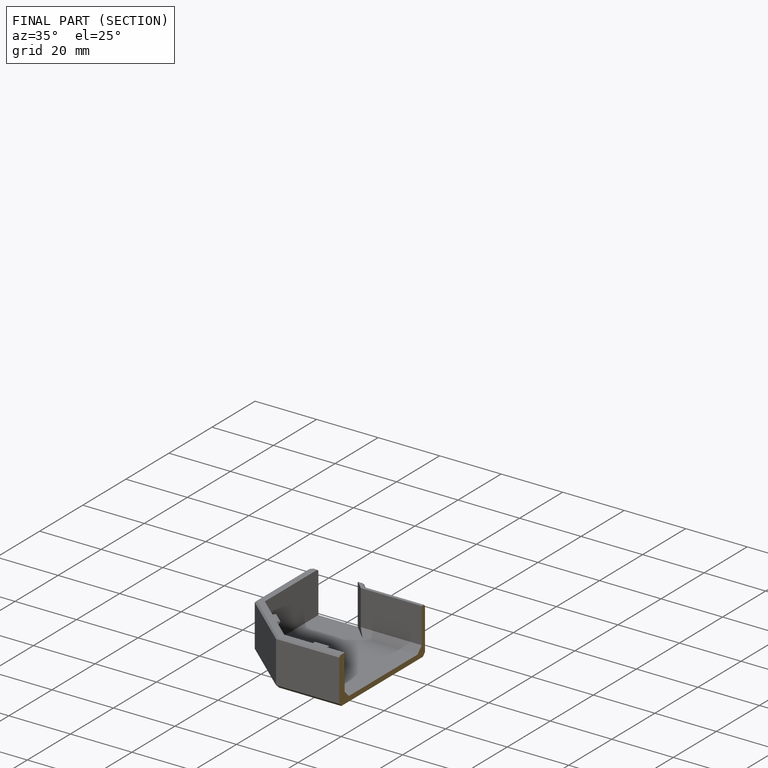
[diagram: finished part — half-section view (interior)]
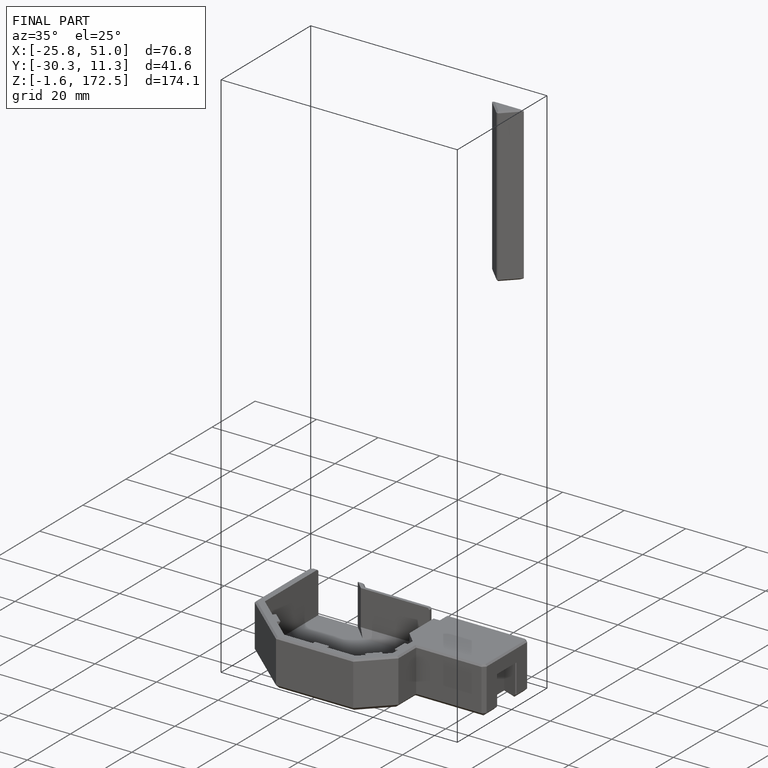
[diagram: finished part — iso view with bounding-box wireframe]
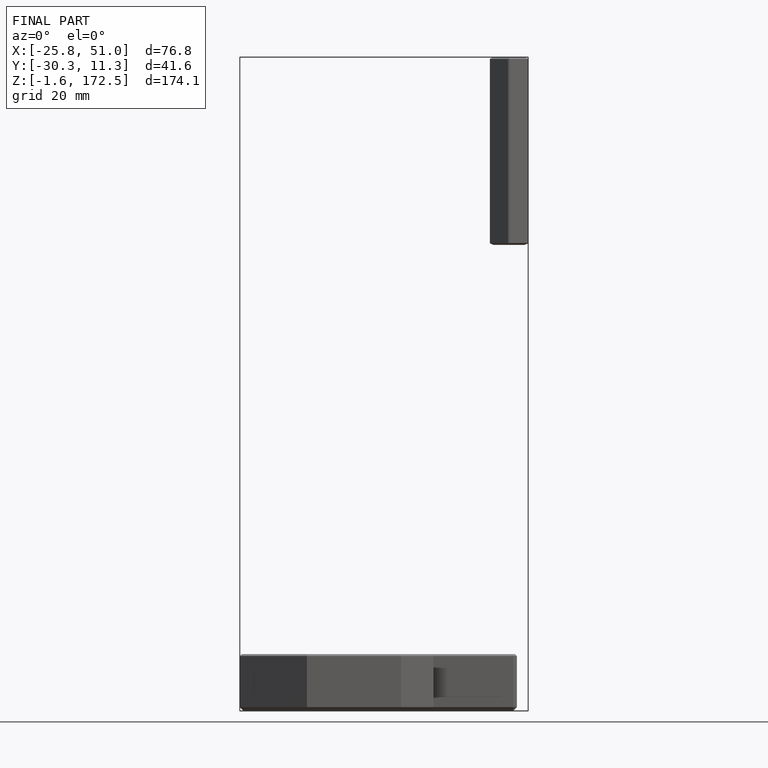
[diagram: finished part — front view with bounding-box wireframe]
